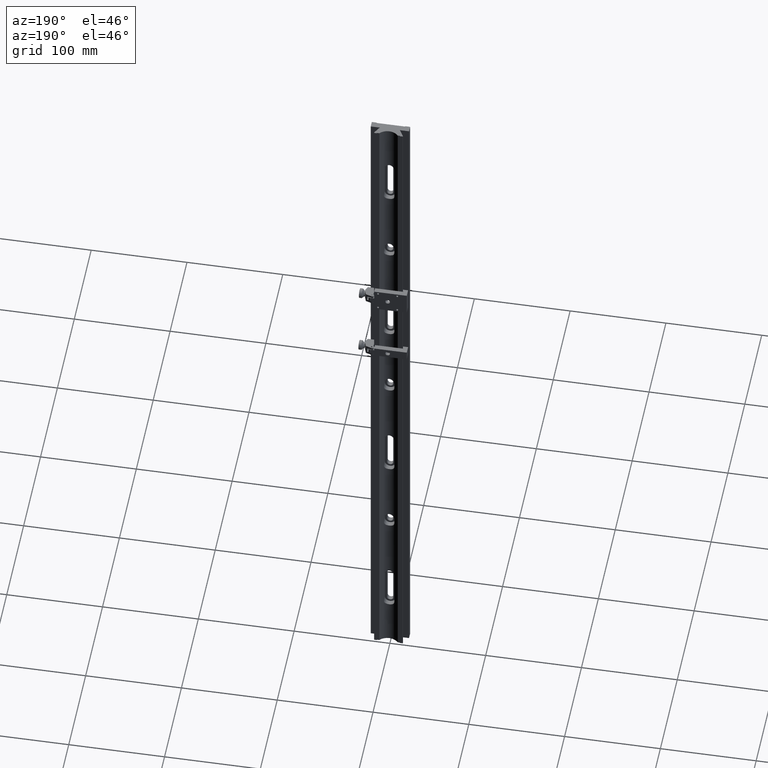
[diagram: clean part render]
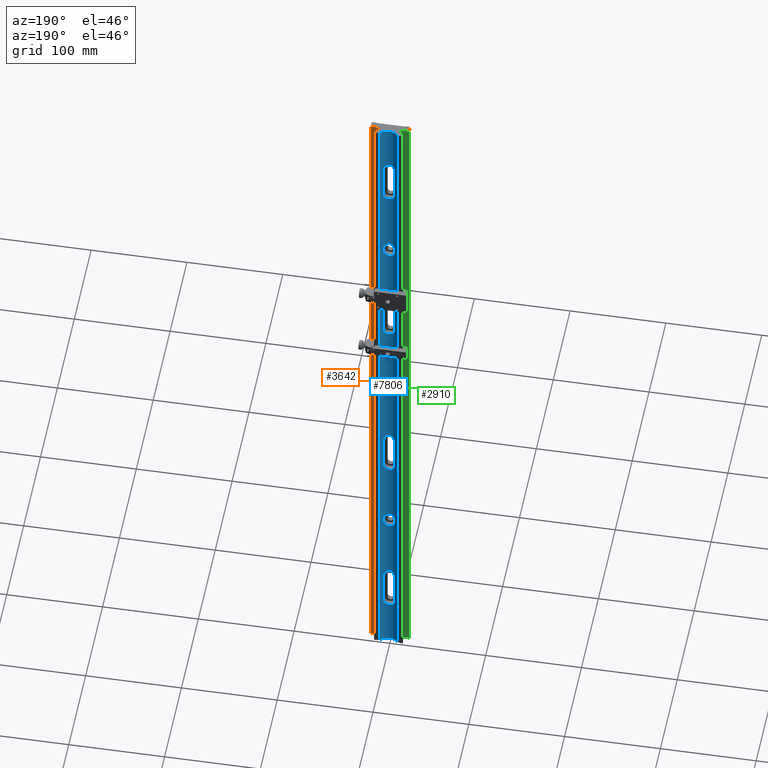
[diagram: same view with three faces highlighted in distinct colors, each labeled with its STEP entity id]
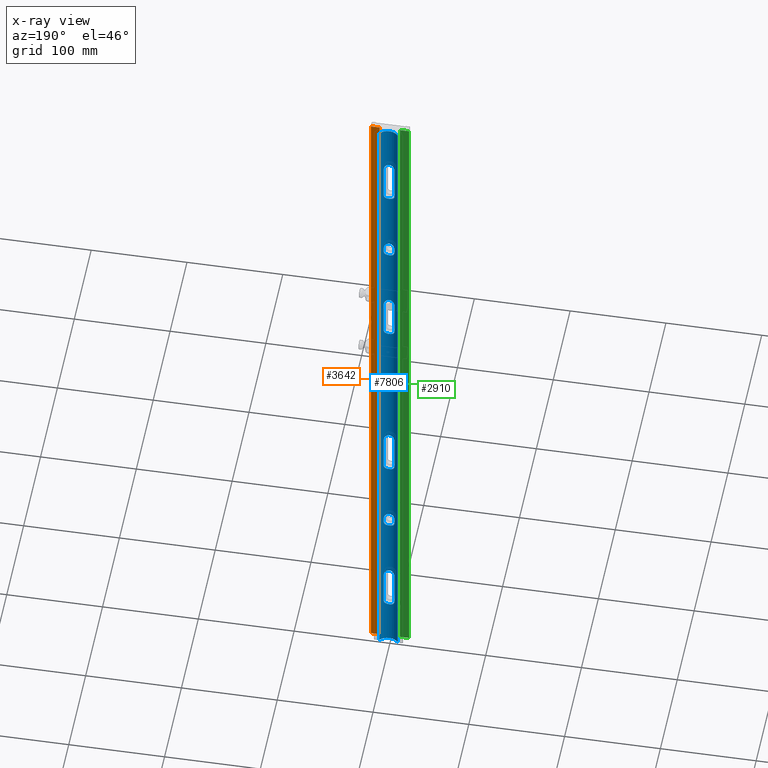
[diagram: x-ray of the same camera — body ghosted, the three highlighted faces saturated]
A machine part, auxiliary view with three faces highlighted in distinct colors.
The next image is the same camera in x-ray (body ghosted, the three faces saturated) — at least one of them is partly hidden behind the body in this view.
Their STEP definitions:

[orange] entity #3642 — the highlighted planar face has unit normal (0, -1, 0).
#83 = DIRECTION ( 'NONE',  ( 2.449293598294705921E-16, -0.000000000000000000, 1.000000000000000000 ) ) ;
#127 = VERTEX_POINT ( 'NONE', #5987 ) ;
#130 = LINE ( 'NONE', #1961, #2920 ) ;
#648 = DIRECTION ( 'NONE',  ( -1.000000000000000000, 0.000000000000000000, 2.449293598294706414E-16 ) ) ;
#782 = DIRECTION ( 'NONE',  ( -1.000000000000000000, 0.000000000000000000, 2.449293598294706414E-16 ) ) ;
#1166 = DIRECTION ( 'NONE',  ( 1.000000000000000000, 0.000000000000000000, -2.449293598294705921E-16 ) ) ;
#1229 = ORIENTED_EDGE ( 'NONE', *, *, #1980, .T. ) ;
#1683 = EDGE_CURVE ( 'NONE', #127, #2333, #4557, .T. ) ;
#1747 = AXIS2_PLACEMENT_3D ( 'NONE', #1921, #83, #1166 ) ;
#1921 = CARTESIAN_POINT ( 'NONE',  ( 20.00000000000000000, 375.0000000000000000, -4.898587196589413026E-15 ) ) ;
#1961 = CARTESIAN_POINT ( 'NONE',  ( 20.00000000000000000, 375.0000000000000000, -4.898587196589413026E-15 ) ) ;
#1980 = EDGE_CURVE ( 'NONE', #5323, #127, #5337, .T. ) ;
#2322 = CARTESIAN_POINT ( 'NONE',  ( 20.00000000000000000, 375.0000000000000000, -4.898587196589413026E-15 ) ) ;
#2333 = VERTEX_POINT ( 'NONE', #4110 ) ;
#2920 = VECTOR ( 'NONE', #648, 1000.000000000000000 ) ;
#3049 = PLANE ( 'NONE',  #1747 ) ;
#3202 = LINE ( 'NONE', #3802, #4341 ) ;
#3568 = ORIENTED_EDGE ( 'NONE', *, *, #5027, .F. ) ;
#3642 = ADVANCED_FACE ( 'NONE', ( #7479 ), #3049, .F. ) ;
#3657 = DIRECTION ( 'NONE',  ( -0.000000000000000000, -1.000000000000000000, -0.000000000000000000 ) ) ;
#3766 = VECTOR ( 'NONE', #3657, 1000.000000000000000 ) ;
#3802 = CARTESIAN_POINT ( 'NONE',  ( 10.59252271188812777, 375.0000000000000000, -2.594419806801887381E-15 ) ) ;
#4110 = CARTESIAN_POINT ( 'NONE',  ( 10.59252271188812777, -375.0000000000000000, -2.594419806801887381E-15 ) ) ;
#4341 = VECTOR ( 'NONE', #6370, 1000.000000000000000 ) ;
#4350 = EDGE_CURVE ( 'NONE', #6240, #2333, #3202, .T. ) ;
#4360 = CARTESIAN_POINT ( 'NONE',  ( 20.00000000000000000, 375.0000000000000000, -4.898587196589413026E-15 ) ) ;
#4557 = LINE ( 'NONE', #7087, #6752 ) ;
#4599 = EDGE_LOOP ( 'NONE', ( #4816, #7213, #3568, #1229 ) ) ;
#4816 = ORIENTED_EDGE ( 'NONE', *, *, #1683, .T. ) ;
#5027 = EDGE_CURVE ( 'NONE', #5323, #6240, #130, .T. ) ;
#5323 = VERTEX_POINT ( 'NONE', #2322 ) ;
#5337 = LINE ( 'NONE', #4360, #3766 ) ;
#5522 = CARTESIAN_POINT ( 'NONE',  ( 10.59252271188812777, 375.0000000000000000, -2.594419806801887381E-15 ) ) ;
#5987 = CARTESIAN_POINT ( 'NONE',  ( 20.00000000000000000, -375.0000000000000000, -4.898587196589413026E-15 ) ) ;
#6240 = VERTEX_POINT ( 'NONE', #5522 ) ;
#6370 = DIRECTION ( 'NONE',  ( -0.000000000000000000, -1.000000000000000000, -0.000000000000000000 ) ) ;
#6752 = VECTOR ( 'NONE', #782, 1000.000000000000000 ) ;
#7087 = CARTESIAN_POINT ( 'NONE',  ( 20.00000000000000000, -375.0000000000000000, -4.898587196589413026E-15 ) ) ;
#7213 = ORIENTED_EDGE ( 'NONE', *, *, #4350, .F. ) ;
#7479 = FACE_OUTER_BOUND ( 'NONE', #4599, .T. ) ;

[blue] entity #7806 — the highlighted cylindrical surface (edge-blend (fillet) strip) has radius 12.5 mm, axis along (-0, 0, -1).
#1 = DIRECTION ( 'NONE',  ( -0.000000000000000000, -1.000000000000000000, -0.000000000000000000 ) ) ;
#3 = CARTESIAN_POINT ( 'NONE',  ( -4.927301002126866614, 5.450254798026421987, -4.511737245493970150 ) ) ;
#8 = CARTESIAN_POINT ( 'NONE',  ( 0.3716744979042047592, -75.00049753860504609, -3.500218916825644122 ) ) ;
#15 = CARTESIAN_POINT ( 'NONE',  ( -4.134927261176865265, 193.3690178584609498, -4.203101428351043722 ) ) ;
#21 = CARTESIAN_POINT ( 'NONE',  ( 2.769513885777397544, 124.2653506018369285, -3.806797052175197038 ) ) ;
#23 = EDGE_CURVE ( 'NONE', #5303, #6064, #7561, .T. ) ;
#28 = CARTESIAN_POINT ( 'NONE',  ( 1.791243918881797681, 324.7033078723133031, -3.627770058525934260 ) ) ;
#29 = VERTEX_POINT ( 'NONE', #779 ) ;
#30 = CARTESIAN_POINT ( 'NONE',  ( 5.213099869976743683, -195.2103918892062495, -4.637932341751268339 ) ) ;
#43 = CARTESIAN_POINT ( 'NONE',  ( -4.664130054569972650, 5.920240057219704255, -4.402269544413257130 ) ) ;
#60 = CARTESIAN_POINT ( 'NONE',  ( 4.134927261176863489, 123.1309821415389649, -4.203101428351039281 ) ) ;
#72 = CARTESIAN_POINT ( 'NONE',  ( 5.499999999999998224, -3.368535934802752596, -4.775027839678175567 ) ) ;
#80 = CARTESIAN_POINT ( 'NONE',  ( 4.767077514528521576, 5.766365201874045887, -4.442719698820007501 ) ) ;
#96 = CARTESIAN_POINT ( 'NONE',  ( 4.927301002126864837, 194.5497452019735931, -4.511737245493967485 ) ) ;
#111 = CARTESIAN_POINT ( 'NONE',  ( -5.463268972524249811, 320.2328851296966263, -4.756815190711166430 ) ) ;
#113 = CARTESIAN_POINT ( 'NONE',  ( -4.140132957479324638, -193.3619932071737537, -4.202588055097329800 ) ) ;
#124 = VERTEX_POINT ( 'NONE', #3380 ) ;
#134 = CARTESIAN_POINT ( 'NONE',  ( 1.791243918881805675, 208.2033078723133599, -3.627770058525935593 ) ) ;
#143 = DIRECTION ( 'NONE',  ( -0.000000000000000000, -1.000000000000000000, -0.000000000000000000 ) ) ;
#160 = CARTESIAN_POINT ( 'NONE',  ( -0.3716744979042047037, -124.9995024613949965, -3.500218916825644122 ) ) ;
#168 = CARTESIAN_POINT ( 'NONE',  ( -0.3716744979042020391, 191.5004975386050887, -3.500218916825645010 ) ) ;
#177 = DIRECTION ( 'NONE',  ( -0.000000000000000000, -1.000000000000000000, -0.000000000000000000 ) ) ;
#189 = CARTESIAN_POINT ( 'NONE',  ( 0.7318247305610898756, -275.0368120784781354, -3.516321624483725650 ) ) ;
#196 = CARTESIAN_POINT ( 'NONE',  ( -0.7318247305610954268, -124.9631879215218930, -3.516321624483725206 ) ) ;
#199 = CARTESIAN_POINT ( 'NONE',  ( -4.140132957479327303, -76.86199320717369687, -4.202588055097333353 ) ) ;
#202 = CARTESIAN_POINT ( 'NONE',  ( -1.783197991779772895, 208.2155400363112392, -3.623181025438773073 ) ) ;
#205 = CARTESIAN_POINT ( 'NONE',  ( -4.935953207741832216, 278.0473538013904999, -4.514820086043209280 ) ) ;
#239 = CARTESIAN_POINT ( 'NONE',  ( 5.320886567516189380, -279.0616540270160613, -4.688748875783189440 ) ) ;
#245 = CARTESIAN_POINT ( 'NONE',  ( 5.499999999999996447, -119.8685359348027504, -4.775027839678175567 ) ) ;
#249 = VERTEX_POINT ( 'NONE', #2097 ) ;
#253 = CARTESIAN_POINT ( 'NONE',  ( -5.213099869976739242, 278.7103918892061643, -4.637932341751265675 ) ) ;
#277 = CARTESIAN_POINT ( 'NONE',  ( 4.935953207741828663, -278.0473538013904999, -4.514820086043206615 ) ) ;
#281 = CARTESIAN_POINT ( 'NONE',  ( 2.767522286145573052, -124.2663226463482431, -3.806394110068379799 ) ) ;
#293 = EDGE_CURVE ( 'NONE', #6707, #6554, #3666, .T. ) ;
#300 = CARTESIAN_POINT ( 'NONE',  ( -5.499999999999893419, 375.0000000000000000, -4.775027839678121389 ) ) ;
#303 = EDGE_CURVE ( 'NONE', #3543, #3322, #6414, .T. ) ;
#309 = DIRECTION ( 'NONE',  ( -0.000000000000000000, -1.000000000000000000, -0.000000000000000000 ) ) ;
#316 = CARTESIAN_POINT ( 'NONE',  ( 4.664130054569964656, -205.9202400572197291, -4.402269544413250024 ) ) ;
#328 = CARTESIAN_POINT ( 'NONE',  ( 5.004172744658498928, 278.2108664494283516, -4.545134261420411548 ) ) ;
#331 = ORIENTED_EDGE ( 'NONE', *, *, #7406, .T. ) ;
#355 = VERTEX_POINT ( 'NONE', #2486 ) ;
#364 = CARTESIAN_POINT ( 'NONE',  ( 2.767522286145575716, -7.766322646348289283, -3.806394110068380243 ) ) ;
#373 = CARTESIAN_POINT ( 'NONE',  ( -5.463268972524254252, 203.7328851296965126, -4.756815190711169095 ) ) ;
#385 = CARTESIAN_POINT ( 'NONE',  ( 5.500000000000000000, 203.0000000000000000, -4.775027839678192443 ) ) ;
#442 = CARTESIAN_POINT ( 'NONE',  ( -9.604686356149272797, 375.0000000000000000, -7.999999999999998224 ) ) ;
#463 = LINE ( 'NONE', #7804, #2785 ) ;
#480 = VECTOR ( 'NONE', #1912, 1000.000000000000000 ) ;
#500 = CARTESIAN_POINT ( 'NONE',  ( 4.757545737347813386, -322.2654660182066664, -4.440405074606871061 ) ) ;
#507 = CARTESIAN_POINT ( 'NONE',  ( 5.211065515426129835, 78.70492193014369775, -4.637008669236490910 ) ) ;
#525 = CARTESIAN_POINT ( 'NONE',  ( 1.266012518167691558, 8.355390716780021876, -3.562992296828747740 ) ) ;
#532 = CARTESIAN_POINT ( 'NONE',  ( 4.468409719719223183, -77.28826126659807016, -4.325465594975088202 ) ) ;
#545 = CARTESIAN_POINT ( 'NONE',  ( -4.757545737347818715, 322.2654660182066664, -4.440405074606871949 ) ) ;
#561 = ORIENTED_EDGE ( 'NONE', *, *, #7599, .F. ) ;
#562 = CARTESIAN_POINT ( 'NONE',  ( 2.455686713790327325, 7.934343998055410907, -3.739010744038294032 ) ) ;
#567 = CARTESIAN_POINT ( 'NONE',  ( 5.499999999999992006, -319.8685359348027077, -4.775027839678173791 ) ) ;
#594 = CARTESIAN_POINT ( 'NONE',  ( -1.791243918881806119, -208.2033078723133315, -3.627770058525936037 ) ) ;
#604 = CARTESIAN_POINT ( 'NONE',  ( 4.360951971730209209, 6.356151466734035083, -4.284773272989579773 ) ) ;
#614 = CARTESIAN_POINT ( 'NONE',  ( 0.7318247305610953157, -75.03681207847813539, -3.516321624483725206 ) ) ;
#622 = CARTESIAN_POINT ( 'NONE',  ( -1.960439013360200988, 191.8581408171018836, -3.653553443696078595 ) ) ;
#635 = CARTESIAN_POINT ( 'NONE',  ( -0.7235754915566942058, -191.5447274495481338, -3.519625967096237318 ) ) ;
#650 = CARTESIAN_POINT ( 'NONE',  ( 4.664130054569961992, -322.4202400572197575, -4.402269544413250024 ) ) ;
#656 = CARTESIAN_POINT ( 'NONE',  ( 4.664130054569964656, 194.0797599427802425, -4.402269544413250024 ) ) ;
#663 = CARTESIAN_POINT ( 'NONE',  ( 5.320886567516186716, 120.9383459729838535, -4.688748875783187664 ) ) ;
#668 = CARTESIAN_POINT ( 'NONE',  ( -5.499999999999996447, 319.5000000000000000, -4.775027839678172015 ) ) ;
#670 = CARTESIAN_POINT ( 'NONE',  ( 0.7318247305610878772, -191.5368120784781070, -3.516321624483724761 ) ) ;
#676 = ORIENTED_EDGE ( 'NONE', *, *, #4093, .T. ) ;
#677 = CARTESIAN_POINT ( 'NONE',  ( -5.499999999999999112, -203.3683992632186914, -4.775027839678177344 ) ) ;
#681 = CARTESIAN_POINT ( 'NONE',  ( -1.436019803944291295, 8.321557481281221413, -3.577646812477409899 ) ) ;
#702 = CARTESIAN_POINT ( 'NONE',  ( -0.1746818680405322621, 125.0002412273279759, -3.499893860054751560 ) ) ;
#709 = CARTESIAN_POINT ( 'NONE',  ( 4.015897234029109697, -193.2378380536803775, -4.161930955679303601 ) ) ;
#716 = CARTESIAN_POINT ( 'NONE',  ( 5.500000000000048850, 375.0000000000000000, -4.775027839678199548 ) ) ;
#731 = LINE ( 'NONE', #1930, #4928 ) ;
#735 = CARTESIAN_POINT ( 'NONE',  ( -4.468409719719204531, 193.7882612665979423, -4.325465594975079320 ) ) ;
#742 = ORIENTED_EDGE ( 'NONE', *, *, #3877, .F. ) ;
#766 = ORIENTED_EDGE ( 'NONE', *, *, #7862, .T. ) ;
#768 = CARTESIAN_POINT ( 'NONE',  ( -1.266012518167695777, -124.8553907167800077, -3.562992296828745964 ) ) ;
#772 = CARTESIAN_POINT ( 'NONE',  ( -5.499999999999995559, -80.13146406519727805, -4.775027839678173791 ) ) ;
#773 = CARTESIAN_POINT ( 'NONE',  ( 4.134927261176866153, 206.6309821415388797, -4.203101428351043722 ) ) ;
#779 = CARTESIAN_POINT ( 'NONE',  ( 5.499999999999998224, -203.0000000000000000, -4.775027839678175567 ) ) ;
#796 = CARTESIAN_POINT ( 'NONE',  ( 2.769513885777401985, -275.7346493981631284, -3.806797052175198814 ) ) ;
#805 = CARTESIAN_POINT ( 'NONE',  ( -5.500000000000001776, -119.5000000000000000, -4.775027839678175567 ) ) ;
#809 = CARTESIAN_POINT ( 'NONE',  ( -1.436019803944288631, 208.3215574812812463, -3.577646812477408123 ) ) ;
#832 = CARTESIAN_POINT ( 'NONE',  ( 5.211065515426124506, -204.7950780698564017, -4.637008669236491798 ) ) ;
#838 = CARTESIAN_POINT ( 'NONE',  ( -5.463371493397496614, -120.2295511822378558, -4.756877311680623777 ) ) ;
#845 = CARTESIAN_POINT ( 'NONE',  ( -3.359488323669840959, 207.3693076541405276, -3.956037097100739697 ) ) ;
#847 = CARTESIAN_POINT ( 'NONE',  ( -1.266012518167694667, 275.1446092832199497, -3.562992296828746408 ) ) ;
#855 = DIRECTION ( 'NONE',  ( 0.000000000000000000, 0.000000000000000000, 1.000000000000000000 ) ) ;
#887 = CARTESIAN_POINT ( 'NONE',  ( -4.935953207741847315, -121.9526461986094432, -4.514820086043216385 ) ) ;
#893 = CARTESIAN_POINT ( 'NONE',  ( 5.317647263843137573, 279.0484297961110656, -4.687213424654781413 ) ) ;
#917 = LINE ( 'NONE', #4462, #3036 ) ;
#919 = CARTESIAN_POINT ( 'NONE',  ( 5.004172744658491823, -205.2891335505716199, -4.545134261420405331 ) ) ;
#924 = CARTESIAN_POINT ( 'NONE',  ( 1.436019803944290185, -124.8215574812812321, -3.577646812477413008 ) ) ;
#930 = CARTESIAN_POINT ( 'NONE',  ( 5.500000000000000000, 203.0000000000000000, -4.775027839678192443 ) ) ;
#933 = CARTESIAN_POINT ( 'NONE',  ( 0.7235754915566925405, 275.0447274495481906, -3.519625967096237762 ) ) ;
#947 = CARTESIAN_POINT ( 'NONE',  ( 4.664130054569974426, 77.57975994278031351, -4.402269544413257130 ) ) ;
#956 = CARTESIAN_POINT ( 'NONE',  ( 4.134927261176858160, -276.8690178584608930, -4.203101428351036617 ) ) ;
#982 = CARTESIAN_POINT ( 'NONE',  ( 0.1746818680405327895, 74.99975877267203828, -3.499893860054749339 ) ) ;
#991 = CARTESIAN_POINT ( 'NONE',  ( 5.500000000000086153, 375.0000000000000000, -4.775027839678217312 ) ) ;
#1004 = CARTESIAN_POINT ( 'NONE',  ( -4.767077514528522464, -5.766365201874046775, -4.442719698820006613 ) ) ;
#1036 = CARTESIAN_POINT ( 'NONE',  ( -1.783197991779752245, -275.2844599636887324, -3.623181025438773073 ) ) ;
#1042 = EDGE_CURVE ( 'NONE', #1432, #6660, #6464, .T. ) ;
#1094 = CARTESIAN_POINT ( 'NONE',  ( 5.500000000000002665, -80.50000000000001421, -4.775027839678175567 ) ) ;
#1135 = ORIENTED_EDGE ( 'NONE', *, *, #7617, .T. ) ;
#1137 = CARTESIAN_POINT ( 'NONE',  ( 2.452909808896948096, -324.4360800659704864, -3.738324891094067848 ) ) ;
#1157 = EDGE_CURVE ( 'NONE', #2868, #6605, #2060, .T. ) ;
#1158 = CARTESIAN_POINT ( 'NONE',  ( 4.664130054569975314, -5.920240057219700702, -4.402269544413255353 ) ) ;
#1164 = CARTESIAN_POINT ( 'NONE',  ( 3.640810629803842513, 7.137592340526056844, -4.039074654214519278 ) ) ;
#1169 = CARTESIAN_POINT ( 'NONE',  ( 2.769513885777399764, -75.73464939816309993, -3.806797052175198370 ) ) ;
#1181 = CARTESIAN_POINT ( 'NONE',  ( 4.360951971730211874, 122.8561514667340617, -4.284773272989580661 ) ) ;
#1188 = CARTESIAN_POINT ( 'NONE',  ( 1.960439013360216087, 324.6418591828982017, -3.653553443696080816 ) ) ;
#1190 = CARTESIAN_POINT ( 'NONE',  ( 4.767077514528505588, -194.2336347981259053, -4.442719698820002172 ) ) ;
#1200 = CARTESIAN_POINT ( 'NONE',  ( -2.769513885777388662, -207.7653506018370138, -3.806797052175194374 ) ) ;
#1203 = CARTESIAN_POINT ( 'NONE',  ( -3.638581638029507292, 7.139627760276445301, -4.038379994050424138 ) ) ;
#1206 = CARTESIAN_POINT ( 'NONE',  ( 5.500000000000001776, -80.13160073678132278, -4.775027839678177344 ) ) ;
#1211 = CARTESIAN_POINT ( 'NONE',  ( 0.7235754915566929846, 191.5447274495481906, -3.519625967096239538 ) ) ;
#1214 = DIRECTION ( 'NONE',  ( 0.000000000000000000, 0.000000000000000000, -1.000000000000000000 ) ) ;
#1217 = CARTESIAN_POINT ( 'NONE',  ( 1.791243918881802122, 124.7033078723133315, -3.627770058525932928 ) ) ;
#1221 = CARTESIAN_POINT ( 'NONE',  ( 5.213099869976735690, 321.2896081107938926, -4.637932341751261234 ) ) ;
#1223 = CARTESIAN_POINT ( 'NONE',  ( -4.927301002126866614, -194.5497452019736500, -4.511737245493968373 ) ) ;
#1245 = CARTESIAN_POINT ( 'NONE',  ( 4.468409719719223183, 6.211738733401981349, -4.325465594975085537 ) ) ;
#1253 = CARTESIAN_POINT ( 'NONE',  ( -1.444167463114250483, -324.8101175061848949, -3.582471709711286145 ) ) ;
#1260 = CARTESIAN_POINT ( 'NONE',  ( 4.365141366191267025, 193.6350058716099909, -4.284993196813128513 ) ) ;
#1262 = ORIENTED_EDGE ( 'NONE', *, *, #2321, .F. ) ;
#1263 = DIRECTION ( 'NONE',  ( -0.000000000000000000, -1.000000000000000000, -0.000000000000000000 ) ) ;
#1268 = LINE ( 'NONE', #6204, #2271 ) ;
#1273 = CARTESIAN_POINT ( 'NONE',  ( 5.463371493397498391, -196.2704488177621727, -4.756877311680623777 ) ) ;
#1274 = VERTEX_POINT ( 'NONE', #6355 ) ;
#1280 = CARTESIAN_POINT ( 'NONE',  ( 5.500000000000105693, 375.0000000000000000, -4.775027839678227082 ) ) ;
#1304 = CARTESIAN_POINT ( 'NONE',  ( -1.436019803944296847, 324.8215574812812179, -3.577646812477412563 ) ) ;
#1306 = DIRECTION ( 'NONE',  ( -0.000000000000000000, -1.000000000000000000, -0.000000000000000000 ) ) ;
#1322 = CARTESIAN_POINT ( 'NONE',  ( -3.638581638029504628, -76.36037223972360266, -4.038379994050424138 ) ) ;
#1326 = CARTESIAN_POINT ( 'NONE',  ( -5.213099869976742795, 195.2103918892061927, -4.637932341751268339 ) ) ;
#1329 = CARTESIAN_POINT ( 'NONE',  ( 5.500000000000000888, 319.5000000000000000, -4.775027839678175567 ) ) ;
#1348 = CARTESIAN_POINT ( 'NONE',  ( -5.320886567516190269, -204.4383459729837966, -4.688748875783187664 ) ) ;
#1364 = CARTESIAN_POINT ( 'NONE',  ( -0.7235754915566942058, 208.4552725504519231, -3.519625967096237318 ) ) ;
#1365 = CARTESIAN_POINT ( 'NONE',  ( 0.9034421561682093316, 275.0716877395977349, -3.531417676067726497 ) ) ;
#1368 = CARTESIAN_POINT ( 'NONE',  ( -4.767077514528506477, 194.2336347981259053, -4.442719698820002172 ) ) ;
#1382 = ORIENTED_EDGE ( 'NONE', *, *, #7412, .F. ) ;
#1384 = CARTESIAN_POINT ( 'NONE',  ( -1.791243918881800123, 75.29669212768669695, -3.627770058525933372 ) ) ;
#1393 = CARTESIAN_POINT ( 'NONE',  ( 4.360951971730207433, -277.1438485332660093, -4.284773272989580661 ) ) ;
#1400 = CARTESIAN_POINT ( 'NONE',  ( 1.783197991779762903, -124.7155400363112392, -3.623181025438776182 ) ) ;
#1406 = CARTESIAN_POINT ( 'NONE',  ( 0.3716744979042012620, 208.4995024613950250, -3.500218916825644566 ) ) ;
#1432 = VERTEX_POINT ( 'NONE', #7156 ) ;
#1433 = CARTESIAN_POINT ( 'NONE',  ( 3.638581638029496634, -207.1396277602765679, -4.038379994050417920 ) ) ;
#1436 = VECTOR ( 'NONE', #309, 1000.000000000000000 ) ;
#1440 = DIRECTION ( 'NONE',  ( -0.000000000000000000, -1.000000000000000000, -0.000000000000000000 ) ) ;
#1471 = CARTESIAN_POINT ( 'NONE',  ( 0.1746818680405358704, -208.5002412273279901, -3.499893860054749783 ) ) ;
#1476 = CARTESIAN_POINT ( 'NONE',  ( -3.640810629803848730, -123.6375923405260693, -4.039074654214522830 ) ) ;
#1479 = EDGE_CURVE ( 'NONE', #6605, #2285, #3214, .T. ) ;
#1485 = CARTESIAN_POINT ( 'NONE',  ( -0.3716744979042072572, 275.0004975386050319, -3.500218916825645010 ) ) ;
#1506 = ORIENTED_EDGE ( 'NONE', *, *, #4632, .T. ) ;
#1511 = CIRCLE ( 'NONE', #7067, 12.50000000000000000 ) ;
#1518 = CARTESIAN_POINT ( 'NONE',  ( 4.767077514528520688, -277.7336347981259905, -4.442719698820007501 ) ) ;
#1523 = CARTESIAN_POINT ( 'NONE',  ( 0.1746818680405322344, -125.0002412273279759, -3.499893860054750228 ) ) ;
#1531 = CARTESIAN_POINT ( 'NONE',  ( 3.365233826132077777, 207.3650858888913433, -3.957591329563103333 ) ) ;
#1533 = CARTESIAN_POINT ( 'NONE',  ( -4.468409719719227624, 277.2882612665979991, -4.325465594975087313 ) ) ;
#1538 = VERTEX_POINT ( 'NONE', #1962 ) ;
#1549 = CARTESIAN_POINT ( 'NONE',  ( -4.015897234029111473, 76.73783805368042010, -4.161930955679307154 ) ) ;
#1558 = CARTESIAN_POINT ( 'NONE',  ( -5.500000000000000000, -2.999999999999999112, -4.775027839678175567 ) ) ;
#1582 = CARTESIAN_POINT ( 'NONE',  ( -0.7318247305610920961, 75.03681207847812118, -3.516321624483725206 ) ) ;
#1584 = EDGE_LOOP ( 'NONE', ( #561, #4976, #3950, #4343 ) ) ;
#1596 = CARTESIAN_POINT ( 'NONE',  ( -4.757545737347818715, -277.7345339817934473, -4.440405074606871949 ) ) ;
#1605 = CARTESIAN_POINT ( 'NONE',  ( -4.927301002126866614, 205.4502547980264353, -4.511737245493968373 ) ) ;
#1665 = CARTESIAN_POINT ( 'NONE',  ( 2.452909808896960975, 75.56391993402969831, -3.738324891094070068 ) ) ;
#1684 = CARTESIAN_POINT ( 'NONE',  ( -4.365141366191266137, 206.3649941283901228, -4.284993196813127625 ) ) ;
#1691 = CARTESIAN_POINT ( 'NONE',  ( 3.359488323669817422, -323.8693076541405276, -3.956037097100733479 ) ) ;
#1708 = CARTESIAN_POINT ( 'NONE',  ( -5.499999999999997335, -280.1314640651972354, -4.775027839678172015 ) ) ;
#1712 = CARTESIAN_POINT ( 'NONE',  ( -5.320886567516185828, -4.438345972983841037, -4.688748875783186776 ) ) ;
#1725 = CARTESIAN_POINT ( 'NONE',  ( 3.640810629803847842, -76.36240765947397335, -4.039074654214521942 ) ) ;
#1733 = LINE ( 'NONE', #3475, #5245 ) ;
#1737 = CARTESIAN_POINT ( 'NONE',  ( -4.140132957479330855, 123.1380067928263173, -4.202588055097335129 ) ) ;
#1760 = CARTESIAN_POINT ( 'NONE',  ( 4.134927261176862601, 6.630982141538984465, -4.203101428351038393 ) ) ;
#1767 = CARTESIAN_POINT ( 'NONE',  ( 4.360951971730210985, -77.14384853326598090, -4.284773272989579773 ) ) ;
#1770 = EDGE_CURVE ( 'NONE', #7829, #249, #3916, .T. ) ;
#1782 = CARTESIAN_POINT ( 'NONE',  ( -4.664130054569976203, 122.4202400572197291, -4.402269544413258906 ) ) ;
#1788 = CARTESIAN_POINT ( 'NONE',  ( 5.500000000000000888, 319.8683992632187483, -4.775027839678174679 ) ) ;
#1790 = CARTESIAN_POINT ( 'NONE',  ( 5.500000000000000000, -197.0000000000000000, -4.775027839678175567 ) ) ;
#1794 = LINE ( 'NONE', #7386, #480 ) ;
#1796 = CARTESIAN_POINT ( 'NONE',  ( -3.640810629803843845, -207.1375923405260551, -4.039074654214518389 ) ) ;
#1805 = CARTESIAN_POINT ( 'NONE',  ( -4.935953207741830440, -321.9526461986093864, -4.514820086043210168 ) ) ;
#1815 = FACE_OUTER_BOUND ( 'NONE', #7849, .T. ) ;
#1823 = CARTESIAN_POINT ( 'NONE',  ( -4.365141366191267025, 322.8649941283901512, -4.284993196813128513 ) ) ;
#1826 = CARTESIAN_POINT ( 'NONE',  ( 2.769513885777387330, -192.2346493981630715, -3.806797052175194374 ) ) ;
#1831 = VECTOR ( 'NONE', #177, 1000.000000000000000 ) ;
#1833 = VERTEX_POINT ( 'NONE', #7247 ) ;
#1839 = CARTESIAN_POINT ( 'NONE',  ( -2.455686713790346420, -324.4343439980554535, -3.739010744038299805 ) ) ;
#1844 = CARTESIAN_POINT ( 'NONE',  ( 4.757545737347824044, 194.2345339817934189, -4.440405074606874614 ) ) ;
#1850 = CARTESIAN_POINT ( 'NONE',  ( -5.004172744658499816, 121.7891335505715915, -4.545134261420408883 ) ) ;
#1856 = CARTESIAN_POINT ( 'NONE',  ( 1.444167463114244265, 324.8101175061847812, -3.582471709711286145 ) ) ;
#1858 = CARTESIAN_POINT ( 'NONE',  ( 3.365233826132077777, -192.6349141111087135, -3.957591329563103333 ) ) ;
#1880 = CARTESIAN_POINT ( 'NONE',  ( -5.499999999999997335, 3.368535934802753040, -4.775027839678172903 ) ) ;
#1889 = CARTESIAN_POINT ( 'NONE',  ( -4.664130054569973538, -77.57975994278032772, -4.402269544413257130 ) ) ;
#1894 = CARTESIAN_POINT ( 'NONE',  ( -2.769513885777388662, 192.2346493981630999, -3.806797052175194374 ) ) ;
#1904 = CARTESIAN_POINT ( 'NONE',  ( 4.015897234029107921, 323.2621619463196225, -4.161930955679305377 ) ) ;
#1906 = LINE ( 'NONE', #7931, #7063 ) ;
#1912 = DIRECTION ( 'NONE',  ( -0.000000000000000000, -1.000000000000000000, -0.000000000000000000 ) ) ;
#1930 = CARTESIAN_POINT ( 'NONE',  ( 5.500000000000010658, 375.0000000000000000, -4.775027839678180896 ) ) ;
#1935 = ORIENTED_EDGE ( 'NONE', *, *, #5212, .T. ) ;
#1945 = EDGE_LOOP ( 'NONE', ( #742, #5631, #7432, #676 ) ) ;
#1946 = CARTESIAN_POINT ( 'NONE',  ( -0.1746818680405374247, -191.4997587726720099, -3.499893860054750228 ) ) ;
#1962 = CARTESIAN_POINT ( 'NONE',  ( -5.499999999999996447, 319.5000000000000000, -4.775027839678172015 ) ) ;
#1969 = CARTESIAN_POINT ( 'NONE',  ( -1.444167463114251371, 191.6898824938151620, -3.582471709711287922 ) ) ;
#1983 = CARTESIAN_POINT ( 'NONE',  ( -2.455686713790331765, 75.56565600194463173, -3.739010744038295808 ) ) ;
#1992 = AXIS2_PLACEMENT_3D ( 'NONE', #2025, #6967, #3876 ) ;
#2008 = EDGE_CURVE ( 'NONE', #2430, #2329, #731, .T. ) ;
#2016 = DIRECTION ( 'NONE',  ( -0.000000000000000000, -1.000000000000000000, -0.000000000000000000 ) ) ;
#2025 = CARTESIAN_POINT ( 'NONE',  ( -2.407148620655123076E-16, 375.0000000000000000, -16.00000000000000000 ) ) ;
#2039 = ORIENTED_EDGE ( 'NONE', *, *, #23, .F. ) ;
#2050 = CARTESIAN_POINT ( 'NONE',  ( 1.266012518167691336, 208.3553907167800787, -3.562992296828746408 ) ) ;
#2056 = CARTESIAN_POINT ( 'NONE',  ( 9.604686356149276349, 375.0000000000000000, -8.000000000000001776 ) ) ;
#2060 = B_SPLINE_CURVE_WITH_KNOTS ( 'NONE', 3,
 ( #6234, #2462, #5552, #663, #5590, #3754, #6763, #6728, #1181, #60, #4892, #3106, #7893, #21, #3630, #2497, #1217, #4369, #2383, #4966, #7971, #702, #2429, #3668, #6161, #2347, #4811, #7373, #7294, #6118, #4324, #1737, #7408, #1782, #4209, #2984, #1850, #5513, #6203, #6083, #6808, #5469 ),
 .UNSPECIFIED., .F., .F.,
 ( 4, 2, 2, 2, 2, 2, 2, 2, 2, 2, 2, 2, 2, 2, 2, 2, 2, 2, 2, 2, 4 ),
 ( 0.000000000000000000, 0.001088223458269341887, 0.002176446916538683773, 0.003264670374808025660, 0.003808782103942680557, 0.004352893833077335455, 0.005441117291346616626, 0.006529340749615897797, 0.007073452478750538383, 0.007617564207885178969, 0.008705787666154452334, 0.009249899395289092052, 0.009794011124423726566, 0.01088223458269299213, 0.01197045804096226115, 0.01305868149923152671, 0.01414690495750079227, 0.01469101668663544413, 0.01523512841577009252, 0.01632335187403939278, 0.01741157533230868956 ),
 .UNSPECIFIED. ) ;
#2076 = CARTESIAN_POINT ( 'NONE',  ( -0.7235754915566974255, -275.0447274495481338, -3.519625967096239538 ) ) ;
#2092 = CARTESIAN_POINT ( 'NONE',  ( 5.211065515426128059, 278.7049219301437688, -4.637008669236493574 ) ) ;
#2097 = CARTESIAN_POINT ( 'NONE',  ( -5.500000000000000000, -203.0000000000000000, -4.775027839678175567 ) ) ;
#2107 = CARTESIAN_POINT ( 'NONE',  ( -5.213099869976748124, 78.71039188920619267, -4.637932341751268339 ) ) ;
#2117 = CARTESIAN_POINT ( 'NONE',  ( 4.365141366191267025, -206.3649941283901796, -4.284993196813128513 ) ) ;
#2133 = CARTESIAN_POINT ( 'NONE',  ( -4.134927261176860824, 276.8690178584608930, -4.203101428351040170 ) ) ;
#2164 = CARTESIAN_POINT ( 'NONE',  ( -1.266012518167692669, -208.3553907167800503, -3.562992296828745076 ) ) ;
#2167 = CARTESIAN_POINT ( 'NONE',  ( 0.3589657864649588581, -8.491329862232156245, -3.503822942303210120 ) ) ;
#2229 = CARTESIAN_POINT ( 'NONE',  ( 5.004172744658499816, 78.21086644942838007, -4.545134261420407995 ) ) ;
#2233 = EDGE_CURVE ( 'NONE', #6516, #1432, #5839, .T. ) ;
#2238 = CARTESIAN_POINT ( 'NONE',  ( -4.927301002126860396, -278.0497452019735078, -4.511737245493965709 ) ) ;
#2240 = CARTESIAN_POINT ( 'NONE',  ( -1.266012518167691336, -8.355390716780018323, -3.562992296828746852 ) ) ;
#2267 = ORIENTED_EDGE ( 'NONE', *, *, #3090, .F. ) ;
#2268 = B_SPLINE_CURVE_WITH_KNOTS ( 'NONE', 3,
 ( #6782, #6746, #3733, #7391, #6183, #5607, #80, #1245, #604, #1760, #7313, #1164, #2409, #3648, #562, #2367, #6829, #6216, #525, #4870, #4387, #5533, #2481, #2445, #3697, #681, #4826, #6102, #2528, #3087, #1203, #3611, #5568, #43, #4948, #3, #3002, #4993, #5487, #7430, #1880, #7476 ),
 .UNSPECIFIED., .F., .F.,
 ( 4, 2, 2, 2, 2, 2, 2, 2, 2, 2, 2, 2, 2, 2, 2, 2, 2, 2, 2, 2, 4 ),
 ( 8.673617379884034509E-19, 0.001088223458269292664, 0.002176446916538584461, 0.003264670374807876474, 0.003808782103942523999, 0.004352893833077172391, 0.005441117291346465705, 0.006529340749615759887, 0.007073452478750406544, 0.007617564207885053201, 0.008705787666154346516, 0.009249899395288994908, 0.009794011124423641565, 0.01088223458269293488, 0.01197045804096222993, 0.01305868149923152324, 0.01414690495750081656, 0.01469101668663546321, 0.01523512841577010814, 0.01632335187403940319, 0.01741157533230869303 ),
 .UNSPECIFIED. ) ;
#2271 = VECTOR ( 'NONE', #143, 1000.000000000000000 ) ;
#2284 = CARTESIAN_POINT ( 'NONE',  ( -3.359488323669820087, -276.1306923458595293, -3.956037097100734368 ) ) ;
#2285 = VERTEX_POINT ( 'NONE', #5940 ) ;
#2294 = CARTESIAN_POINT ( 'NONE',  ( -4.757545737347824044, 205.7654660182066095, -4.440405074606875502 ) ) ;
#2301 = CARTESIAN_POINT ( 'NONE',  ( 5.004172744658499816, -321.7891335505716484, -4.545134261420412436 ) ) ;
#2321 = EDGE_CURVE ( 'NONE', #6961, #355, #4065, .T. ) ;
#2327 = CARTESIAN_POINT ( 'NONE',  ( -5.499999999999996447, 203.3685359348027362, -4.775027839678173791 ) ) ;
#2328 = ORIENTED_EDGE ( 'NONE', *, *, #2008, .F. ) ;
#2329 = VERTEX_POINT ( 'NONE', #5247 ) ;
#2332 = CARTESIAN_POINT ( 'NONE',  ( 5.500000000000000000, 3.000000000000000000, -4.775027839678175567 ) ) ;
#2335 = CARTESIAN_POINT ( 'NONE',  ( 5.320886567516184940, -79.06165402701616074, -4.688748875783187664 ) ) ;
#2337 = VECTOR ( 'NONE', #6997, 1000.000000000000000 ) ;
#2347 = CARTESIAN_POINT ( 'NONE',  ( -1.436019803944289963, 124.8215574812812321, -3.577646812477408567 ) ) ;
#2353 = CARTESIAN_POINT ( 'NONE',  ( -4.664130054569964656, -277.5797599427803561, -4.402269544413251801 ) ) ;
#2356 = CARTESIAN_POINT ( 'NONE',  ( 4.365141366191275019, -6.364994128390050854, -4.284993196813132066 ) ) ;
#2358 = ORIENTED_EDGE ( 'NONE', *, *, #3399, .T. ) ;
#2367 = CARTESIAN_POINT ( 'NONE',  ( 1.960439013360200544, 8.141859182898075531, -3.653553443696079039 ) ) ;
#2373 = CARTESIAN_POINT ( 'NONE',  ( -4.360951971730209209, -322.8561514667341044, -4.284773272989582438 ) ) ;
#2375 = EDGE_CURVE ( 'NONE', #4800, #7506, #2268, .T. ) ;
#2380 = FACE_BOUND ( 'NONE', #4648, .T. ) ;
#2383 = CARTESIAN_POINT ( 'NONE',  ( 1.266012518167695777, 124.8553907167800077, -3.562992296828745520 ) ) ;
#2387 = CARTESIAN_POINT ( 'NONE',  ( -3.638581638029515286, 323.6396277602762552, -4.038379994050423250 ) ) ;
#2391 = CARTESIAN_POINT ( 'NONE',  ( 5.320886567516190269, -195.5616540270161750, -4.688748875783189440 ) ) ;
#2398 = CARTESIAN_POINT ( 'NONE',  ( 5.499999999999998224, -2.999999999999999112, -4.775027839678173791 ) ) ;
#2409 = CARTESIAN_POINT ( 'NONE',  ( 3.365233826132080885, 7.365085888891295340, -3.957591329563105997 ) ) ;
#2416 = CARTESIAN_POINT ( 'NONE',  ( 4.134927261176864377, -76.86901785846103508, -4.203101428351041058 ) ) ;
#2426 = FACE_BOUND ( 'NONE', #1945, .T. ) ;
#2429 = CARTESIAN_POINT ( 'NONE',  ( -0.3589657864649544727, 124.9913298622321634, -3.503822942303211008 ) ) ;
#2430 = VERTEX_POINT ( 'NONE', #1329 ) ;
#2434 = CARTESIAN_POINT ( 'NONE',  ( 4.360951971730207433, 322.8561514667341612, -4.284773272989580661 ) ) ;
#2442 = CARTESIAN_POINT ( 'NONE',  ( -1.444167463114251371, -208.3101175061848664, -3.582471709711287922 ) ) ;
#2445 = CARTESIAN_POINT ( 'NONE',  ( -0.7235754915566959822, 8.455272550451859104, -3.519625967096239538 ) ) ;
#2450 = CARTESIAN_POINT ( 'NONE',  ( -0.3589657864649542507, -75.00867013776786507, -3.503822942303210564 ) ) ;
#2454 = CARTESIAN_POINT ( 'NONE',  ( -3.640810629803843845, 192.8624076594739165, -4.039074654214518389 ) ) ;
#2456 = FACE_BOUND ( 'NONE', #4771, .T. ) ;
#2462 = CARTESIAN_POINT ( 'NONE',  ( 5.500000000000002665, 119.8683992632187199, -4.775027839678175567 ) ) ;
#2469 = CARTESIAN_POINT ( 'NONE',  ( 1.791243918881805675, -191.7966921276866969, -3.627770058525935593 ) ) ;
#2481 = CARTESIAN_POINT ( 'NONE',  ( -0.3589657864649591357, 8.491329862232156245, -3.503822942303210120 ) ) ;
#2486 = CARTESIAN_POINT ( 'NONE',  ( -9.604686356149272797, -375.0000000000000000, -7.999999999999998224 ) ) ;
#2497 = CARTESIAN_POINT ( 'NONE',  ( 1.960439013360206095, 124.6418591828980738, -3.653553443696078595 ) ) ;
#2511 = CARTESIAN_POINT ( 'NONE',  ( 5.463268972524251588, -3.732885129696531745, -4.756815190711167318 ) ) ;
#2512 = EDGE_CURVE ( 'NONE', #3543, #4688, #7622, .T. ) ;
#2518 = CARTESIAN_POINT ( 'NONE',  ( -4.134927261176865265, -206.6309821415389365, -4.203101428351043722 ) ) ;
#2528 = CARTESIAN_POINT ( 'NONE',  ( -2.767522286145573940, 7.766322646348286618, -3.806394110068379355 ) ) ;
#2535 = CARTESIAN_POINT ( 'NONE',  ( -2.767522286145573496, -75.73367735365175690, -3.806394110068378911 ) ) ;
#2540 = CARTESIAN_POINT ( 'NONE',  ( -5.499999999999994671, -80.50000000000001421, -4.775027839678172015 ) ) ;
#2552 = CARTESIAN_POINT ( 'NONE',  ( -4.757545737347824044, -194.2345339817934189, -4.440405074606875502 ) ) ;
#2575 = CARTESIAN_POINT ( 'NONE',  ( 1.444167463114250705, 208.3101175061849233, -3.582471709711287922 ) ) ;
#2578 = CARTESIAN_POINT ( 'NONE',  ( 3.638581638029496634, 192.8603722397235458, -4.038379994050417920 ) ) ;
#2588 = CARTESIAN_POINT ( 'NONE',  ( -2.769513885777396656, 75.73464939816305730, -3.806797052175194374 ) ) ;
#2596 = CARTESIAN_POINT ( 'NONE',  ( -4.360951971730212762, -206.3561514667340759, -4.284773272989583326 ) ) ;
#2605 = CARTESIAN_POINT ( 'NONE',  ( 2.452909808896958310, -124.4360800659703159, -3.738324891094070068 ) ) ;
#2613 = CARTESIAN_POINT ( 'NONE',  ( -5.500000000000003553, 280.5000000000000000, -4.775027839678175567 ) ) ;
#2635 = CARTESIAN_POINT ( 'NONE',  ( 0.3716744979042018171, -275.0004975386049750, -3.500218916825643234 ) ) ;
#2636 = ORIENTED_EDGE ( 'NONE', *, *, #6223, .T. ) ;
#2644 = CARTESIAN_POINT ( 'NONE',  ( 5.211065515426131611, -121.2950780698563449, -4.637008669236494462 ) ) ;
#2647 = CARTESIAN_POINT ( 'NONE',  ( -5.463268972524248923, -79.76711487030347314, -4.756815190711164654 ) ) ;
#2655 = CARTESIAN_POINT ( 'NONE',  ( -4.767077514528523352, 277.7336347981259905, -4.442719698820006613 ) ) ;
#2673 = CARTESIAN_POINT ( 'NONE',  ( -5.500000000000001776, 80.50000000000001421, -4.775027839678175567 ) ) ;
#2682 = CARTESIAN_POINT ( 'NONE',  ( 1.791243918881797681, -275.2966921276867538, -3.627770058525934260 ) ) ;
#2688 = CARTESIAN_POINT ( 'NONE',  ( 0.9034421561682058899, -124.9283122604022367, -3.531417676067727385 ) ) ;
#2693 = CARTESIAN_POINT ( 'NONE',  ( -2.455686713790346865, 275.5656560019445465, -3.739010744038299805 ) ) ;
#2716 = CARTESIAN_POINT ( 'NONE',  ( -1.436019803944296847, -275.1784425187188390, -3.577646812477412563 ) ) ;
#2717 = ORIENTED_EDGE ( 'NONE', *, *, #7176, .F. ) ;
#2723 = CARTESIAN_POINT ( 'NONE',  ( -2.769513885777397100, -124.2653506018369285, -3.806797052175193929 ) ) ;
#2729 = CARTESIAN_POINT ( 'NONE',  ( 4.935953207741841986, 205.4526461986095285, -4.514820086043215497 ) ) ;
#2740 = CARTESIAN_POINT ( 'NONE',  ( -5.500000000000002665, 80.13160073678135120, -4.775027839678173791 ) ) ;
#2761 = CARTESIAN_POINT ( 'NONE',  ( -9.604686356149272797, 375.0000000000000000, -7.999999999999998224 ) ) ;
#2762 = CARTESIAN_POINT ( 'NONE',  ( -5.320886567516193821, 279.0616540270160613, -4.688748875783187664 ) ) ;
#2764 = CARTESIAN_POINT ( 'NONE',  ( 5.499999999999994671, -119.5000000000000000, -4.775027839678172015 ) ) ;
#2768 = VERTEX_POINT ( 'NONE', #4734 ) ;
#2782 = CARTESIAN_POINT ( 'NONE',  ( 4.365141366191279459, 77.13500587160999089, -4.284993196813136507 ) ) ;
#2785 = VECTOR ( 'NONE', #5954, 1000.000000000000000 ) ;
#2792 = CARTESIAN_POINT ( 'NONE',  ( 1.783197991779772007, -208.2155400363112108, -3.623181025438777070 ) ) ;
#2794 = CARTESIAN_POINT ( 'NONE',  ( -1.791243918881801012, -8.203307872313335025, -3.627770058525932484 ) ) ;
#2812 = CARTESIAN_POINT ( 'NONE',  ( -5.463371493397502832, -320.2295511822378558, -4.756877311680626441 ) ) ;
#2820 = CARTESIAN_POINT ( 'NONE',  ( -0.3716744979042031494, 75.00049753860503188, -3.500218916825644566 ) ) ;
#2830 = CARTESIAN_POINT ( 'NONE',  ( -5.500000000000002665, -3.368399263218690987, -4.775027839678177344 ) ) ;
#2831 = CARTESIAN_POINT ( 'NONE',  ( 9.604686356149276349, -375.0000000000000000, -8.000000000000001776 ) ) ;
#2839 = CARTESIAN_POINT ( 'NONE',  ( -3.638581638029495302, 207.1396277602764826, -4.038379994050417920 ) ) ;
#2864 = CARTESIAN_POINT ( 'NONE',  ( -5.499999999999966249, 375.0000000000000000, -4.775027839678157804 ) ) ;
#2868 = VERTEX_POINT ( 'NONE', #3757 ) ;
#2870 = CARTESIAN_POINT ( 'NONE',  ( -5.317647263843141126, -279.0484297961110656, -4.687213424654784966 ) ) ;
#2899 = CARTESIAN_POINT ( 'NONE',  ( 4.757545737347808945, 77.73453398179336205, -4.440405074606867508 ) ) ;
#2915 = CARTESIAN_POINT ( 'NONE',  ( -4.365141366191267025, -277.1350058716099056, -4.284993196813128513 ) ) ;
#2935 = CARTESIAN_POINT ( 'NONE',  ( 5.463371493397497503, -79.77044881776217267, -4.756877311680623777 ) ) ;
#2973 = CARTESIAN_POINT ( 'NONE',  ( -5.320886567516194710, -320.9383459729839387, -4.688748875783187664 ) ) ;
#2984 = CARTESIAN_POINT ( 'NONE',  ( -4.927301002126852403, 121.9502547980263785, -4.511737245493961268 ) ) ;
#2987 = CARTESIAN_POINT ( 'NONE',  ( 4.134927261176858160, 323.1309821415389365, -4.203101428351036617 ) ) ;
#2989 = CARTESIAN_POINT ( 'NONE',  ( -4.365141366191266137, -193.6350058716099340, -4.284993196813127625 ) ) ;
#3002 = CARTESIAN_POINT ( 'NONE',  ( -5.004172744658502481, 5.289133550571618159, -4.545134261420411548 ) ) ;
#3008 = CARTESIAN_POINT ( 'NONE',  ( -2.769513885777406870, -324.2653506018369285, -3.806797052175197926 ) ) ;
#3012 = CARTESIAN_POINT ( 'NONE',  ( 5.499999999999998224, -2.999999999999999112, -4.775027839678173791 ) ) ;
#3026 = CARTESIAN_POINT ( 'NONE',  ( -5.317647263843141126, 320.9515702038889913, -4.687213424654784966 ) ) ;
#3036 = VECTOR ( 'NONE', #7059, 1000.000000000000000 ) ;
#3055 = CARTESIAN_POINT ( 'NONE',  ( -0.1746818680405320401, -74.99975877267203828, -3.499893860054751560 ) ) ;
#3061 = CARTESIAN_POINT ( 'NONE',  ( 4.140132957479325526, 193.3619932071737537, -4.202588055097333353 ) ) ;
#3078 = CARTESIAN_POINT ( 'NONE',  ( 4.468409719719203643, -193.7882612665979991, -4.325465594975080208 ) ) ;
#3080 = CARTESIAN_POINT ( 'NONE',  ( 5.317647263843144678, -4.451570203888886468, -4.687213424654785854 ) ) ;
#3087 = CARTESIAN_POINT ( 'NONE',  ( -3.359488323669840515, 7.369307654140522246, -3.956037097100739697 ) ) ;
#3090 = EDGE_CURVE ( 'NONE', #6064, #6961, #5488, .T. ) ;
#3106 = CARTESIAN_POINT ( 'NONE',  ( 3.640810629803848730, 123.6375923405260693, -4.039074654214522830 ) ) ;
#3114 = CARTESIAN_POINT ( 'NONE',  ( 4.468409719719224071, 322.7117387334019440, -4.325465594975087313 ) ) ;
#3116 = CARTESIAN_POINT ( 'NONE',  ( -1.783197991779772895, -191.7844599636888177, -3.623181025438773073 ) ) ;
#3122 = CARTESIAN_POINT ( 'NONE',  ( -5.213099869976742795, -204.7896081107938926, -4.637932341751268339 ) ) ;
#3129 = CARTESIAN_POINT ( 'NONE',  ( -5.004172744658502481, -78.21086644942839428, -4.545134261420411548 ) ) ;
#3134 = CARTESIAN_POINT ( 'NONE',  ( 1.436019803944287521, 191.6784425187187821, -3.577646812477408567 ) ) ;
#3144 = CARTESIAN_POINT ( 'NONE',  ( 0.7318247305610898756, 324.9631879215220351, -3.516321624483725650 ) ) ;
#3147 = CARTESIAN_POINT ( 'NONE',  ( 1.960439013360199212, -191.8581408171019405, -3.653553443696078595 ) ) ;
#3162 = DIRECTION ( 'NONE',  ( -0.000000000000000000, -1.000000000000000000, -0.000000000000000000 ) ) ;
#3179 = CARTESIAN_POINT ( 'NONE',  ( 2.767522286145573496, 192.2336773536517569, -3.806394110068378911 ) ) ;
#3208 = CARTESIAN_POINT ( 'NONE',  ( -5.463371493397497503, -203.7295511822377989, -4.756877311680622888 ) ) ;
#3214 = LINE ( 'NONE', #5156, #5703 ) ;
#3215 = CARTESIAN_POINT ( 'NONE',  ( -5.499999999999994671, -80.50000000000001421, -4.775027839678172015 ) ) ;
#3216 = CARTESIAN_POINT ( 'NONE',  ( 0.7318247305610878772, 208.4631879215219783, -3.516321624483724761 ) ) ;
#3218 = CARTESIAN_POINT ( 'NONE',  ( -4.935953207741841986, 194.5473538013905852, -4.514820086043215497 ) ) ;
#3231 = CARTESIAN_POINT ( 'NONE',  ( -1.444167463114246042, 75.18988249381513356, -3.582471709711284369 ) ) ;
#3239 = CARTESIAN_POINT ( 'NONE',  ( 1.960439013360216087, -275.3581408171018552, -3.653553443696080816 ) ) ;
#3247 = CARTESIAN_POINT ( 'NONE',  ( -4.468409719719223183, -122.7117387334019725, -4.325465594975089090 ) ) ;
#3251 = CARTESIAN_POINT ( 'NONE',  ( -4.927301002126855067, -78.04974520197357890, -4.511737245493963044 ) ) ;
#3253 = CARTESIAN_POINT ( 'NONE',  ( 3.640810629803845178, 207.1375923405260551, -4.039074654214519278 ) ) ;
#3254 = CARTESIAN_POINT ( 'NONE',  ( 4.140132957479337961, 276.8619932071736685, -4.202588055097336017 ) ) ;
#3265 = CARTESIAN_POINT ( 'NONE',  ( -5.499999999999998224, 3.000000000000000888, -4.775027839678173791 ) ) ;
#3273 = CARTESIAN_POINT ( 'NONE',  ( 5.499999999999998224, -203.0000000000000000, -4.775027839678175567 ) ) ;
#3284 = CARTESIAN_POINT ( 'NONE',  ( 0.7235754915566919854, -124.9552725504518378, -3.519625967096237318 ) ) ;
#3293 = CARTESIAN_POINT ( 'NONE',  ( 4.015897234029109697, 206.7621619463196510, -4.161930955679303601 ) ) ;
#3296 = CARTESIAN_POINT ( 'NONE',  ( -0.7318247305610952047, 275.0368120784781922, -3.516321624483726538 ) ) ;
#3315 = VERTEX_POINT ( 'NONE', #3012 ) ;
#3322 = VERTEX_POINT ( 'NONE', #2540 ) ;
#3323 = CARTESIAN_POINT ( 'NONE',  ( 4.468409719719224071, -277.2882612665980560, -4.325465594975087313 ) ) ;
#3328 = CARTESIAN_POINT ( 'NONE',  ( 0.3589657864649545838, -124.9913298622321491, -3.503822942303209675 ) ) ;
#3363 = CARTESIAN_POINT ( 'NONE',  ( 5.500000000000000888, -280.1316007367813654, -4.775027839678174679 ) ) ;
#3368 = LINE ( 'NONE', #4542, #3561 ) ;
#3369 = CARTESIAN_POINT ( 'NONE',  ( 4.140132957479330855, -123.1380067928263315, -4.202588055097335129 ) ) ;
#3377 = CARTESIAN_POINT ( 'NONE',  ( 3.359488323669817422, 276.1306923458595293, -3.956037097100732591 ) ) ;
#3380 = CARTESIAN_POINT ( 'NONE',  ( 5.499999999999994671, 80.50000000000001421, -4.775027839678172015 ) ) ;
#3394 = B_SPLINE_CURVE_WITH_KNOTS ( 'NONE', 3,
 ( #805, #6378, #838, #6299, #7707, #887, #7633, #3247, #7105, #6987, #5722, #1476, #3984, #2723, #6466, #7069, #4474, #5193, #768, #196, #160, #1523, #3328, #3284, #2688, #924, #1400, #2605, #281, #5768, #5235, #3369, #4623, #3900, #7548, #5850, #6952, #2644, #5115, #7595, #245, #5067 ),
 .UNSPECIFIED., .F., .F.,
 ( 4, 2, 2, 2, 2, 2, 2, 2, 2, 2, 2, 2, 2, 2, 2, 2, 2, 2, 2, 2, 4 ),
 ( 0.000000000000000000, 0.001088223458269341887, 0.002176446916538683773, 0.003264670374808025660, 0.003808782103942680557, 0.004352893833077335455, 0.005441117291346616626, 0.006529340749615897797, 0.007073452478750538383, 0.007617564207885178969, 0.008705787666154455803, 0.009249899395289093787, 0.009794011124423730036, 0.01088223458269299733, 0.01197045804096226462, 0.01305868149923153018, 0.01414690495750079748, 0.01469101668663544760, 0.01523512841577009599, 0.01632335187403939625, 0.01741157533230868956 ),
 .UNSPECIFIED. ) ;
#3397 = CARTESIAN_POINT ( 'NONE',  ( 0.3589657864649550834, -208.4913298622321918, -3.503822942303211452 ) ) ;
#3399 = EDGE_CURVE ( 'NONE', #2768, #2329, #5153, .T. ) ;
#3450 = CARTESIAN_POINT ( 'NONE',  ( -3.365233826132081330, -7.365085888891296229, -3.957591329563105109 ) ) ;
#3475 = CARTESIAN_POINT ( 'NONE',  ( 5.500000000000120792, 375.0000000000000000, -4.775027839678234187 ) ) ;
#3483 = ORIENTED_EDGE ( 'NONE', *, *, #1479, .T. ) ;
#3496 = CARTESIAN_POINT ( 'NONE',  ( -4.664130054569966433, 205.9202400572197575, -4.402269544413250912 ) ) ;
#3543 = VERTEX_POINT ( 'NONE', #4797 ) ;
#3544 = CARTESIAN_POINT ( 'NONE',  ( -4.134927261176861712, -323.1309821415388228, -4.203101428351038393 ) ) ;
#3556 = CARTESIAN_POINT ( 'NONE',  ( -1.266012518167694445, 75.14460928321999234, -3.562992296828745520 ) ) ;
#3561 = VECTOR ( 'NONE', #1440, 1000.000000000000000 ) ;
#3569 = CARTESIAN_POINT ( 'NONE',  ( -2.452909808896951649, -275.5639199340295704, -3.738324891094069180 ) ) ;
#3573 = CARTESIAN_POINT ( 'NONE',  ( -4.015897234029107032, -6.762161946319629635, -4.161930955679302713 ) ) ;
#3584 = CARTESIAN_POINT ( 'NONE',  ( -1.791243918881803010, -324.7033078723133599, -3.627770058525935148 ) ) ;
#3592 = CYLINDRICAL_SURFACE ( 'NONE', #4726, 12.50000000000000000 ) ;
#3598 = CARTESIAN_POINT ( 'NONE',  ( 3.640810629803843401, 323.6375923405261119, -4.039074654214521054 ) ) ;
#3601 = CARTESIAN_POINT ( 'NONE',  ( 5.499999999999998224, 197.0000000000000000, -4.775027839678173791 ) ) ;
#3611 = CARTESIAN_POINT ( 'NONE',  ( -4.140132957479333520, 6.638006792826293356, -4.202588055097335129 ) ) ;
#3617 = CARTESIAN_POINT ( 'NONE',  ( 1.791243918881801678, -75.29669212768669695, -3.627770058525932928 ) ) ;
#3630 = CARTESIAN_POINT ( 'NONE',  ( 2.455686713790332210, 124.4343439980553683, -3.739010744038294920 ) ) ;
#3634 = CARTESIAN_POINT ( 'NONE',  ( -4.664130054569964656, 322.4202400572196439, -4.402269544413251801 ) ) ;
#3636 = CARTESIAN_POINT ( 'NONE',  ( -5.499999999999996447, -196.6314640651971786, -4.775027839678173791 ) ) ;
#3640 = CARTESIAN_POINT ( 'NONE',  ( 4.927301002126866614, -5.450254798026417546, -4.511737245493968373 ) ) ;
#3645 = CARTESIAN_POINT ( 'NONE',  ( -2.455686713790328213, -207.9343439980555104, -3.739010744038294920 ) ) ;
#3648 = CARTESIAN_POINT ( 'NONE',  ( 2.769513885777391771, 7.765350601836939148, -3.806797052175196150 ) ) ;
#3655 = CARTESIAN_POINT ( 'NONE',  ( 1.266012518167695999, -75.14460928322000655, -3.562992296828745964 ) ) ;
#3666 = B_SPLINE_CURVE_WITH_KNOTS ( 'NONE', 3,
 ( #4600, #5207, #2812, #2973, #6639, #1805, #4876, #5493, #2373, #3544, #7396, #4801, #7360, #3008, #1839, #6791, #3584, #1253, #6031, #5421, #5459, #7918, #4190, #7284, #7846, #4269, #4311, #1137, #3704, #1691, #6191, #6107, #7884, #650, #500, #5379, #2301, #6751, #7956, #4835, #567, #5539 ),
 .UNSPECIFIED., .F., .F.,
 ( 4, 2, 2, 2, 2, 2, 2, 2, 2, 2, 2, 2, 2, 2, 2, 2, 2, 2, 2, 2, 4 ),
 ( 8.673617379884035472E-19, 0.001088223458269229130, 0.002176446916538457392, 0.003264670374807685221, 0.003808782103942299786, 0.004352893833076914784, 0.005441117291346143046, 0.006529340749615373043, 0.007073452478750018833, 0.007617564207884664623, 0.008705787666153957938, 0.009249899395288602860, 0.009794011124423247783, 0.01088223458269253763, 0.01197045804096183094, 0.01305868149923112426, 0.01414690495750041757, 0.01469101668663512494, 0.01523512841576983579, 0.01632335187403925747, 0.01741157533230867915 ),
 .UNSPECIFIED. ) ;
#3668 = CARTESIAN_POINT ( 'NONE',  ( -0.7235754915566918744, 124.9552725504518378, -3.519625967096239094 ) ) ;
#3674 = CARTESIAN_POINT ( 'NONE',  ( -2.452909808896951649, 324.4360800659703727, -3.738324891094069180 ) ) ;
#3687 = CARTESIAN_POINT ( 'NONE',  ( 4.757545737347823156, -5.765466018206599763, -4.440405074606874614 ) ) ;
#3697 = CARTESIAN_POINT ( 'NONE',  ( -0.9034421561682078883, 8.428312260402234912, -3.531417676067723832 ) ) ;
#3704 = CARTESIAN_POINT ( 'NONE',  ( 2.767522286145550403, -324.2663226463483852, -3.806394110068373138 ) ) ;
#3725 = CARTESIAN_POINT ( 'NONE',  ( -3.638581638029495302, -192.8603722397235174, -4.038379994050417920 ) ) ;
#3733 = CARTESIAN_POINT ( 'NONE',  ( 5.463371493397494838, 3.729551182237843321, -4.756877311680622888 ) ) ;
#3754 = CARTESIAN_POINT ( 'NONE',  ( 4.935953207741847315, 121.9526461986094432, -4.514820086043216385 ) ) ;
#3757 = CARTESIAN_POINT ( 'NONE',  ( 5.500000000000002665, 119.5000000000000000, -4.775027839678175567 ) ) ;
#3760 = CARTESIAN_POINT ( 'NONE',  ( -0.9034421561682139945, 324.9283122604023220, -3.531417676067727385 ) ) ;
#3761 = ORIENTED_EDGE ( 'NONE', *, *, #2233, .T. ) ;
#3762 = CARTESIAN_POINT ( 'NONE',  ( 1.444167463114250705, -191.6898824938151336, -3.582471709711287922 ) ) ;
#3778 = CARTESIAN_POINT ( 'NONE',  ( -3.359488323669840071, -76.13069234585948664, -3.956037097100739697 ) ) ;
#3852 = CARTESIAN_POINT ( 'NONE',  ( 5.500000000000000888, -280.5000000000000000, -4.775027839678175567 ) ) ;
#3867 = CARTESIAN_POINT ( 'NONE',  ( -1.791243918881802788, 275.2966921276866401, -3.627770058525934704 ) ) ;
#3876 = DIRECTION ( 'NONE',  ( 0.000000000000000000, 0.000000000000000000, 1.000000000000000000 ) ) ;
#3877 = EDGE_CURVE ( 'NONE', #4800, #3315, #3368, .T. ) ;
#3882 = ORIENTED_EDGE ( 'NONE', *, *, #7553, .T. ) ;
#3890 = CARTESIAN_POINT ( 'NONE',  ( -0.7318247305610892095, -208.4631879215219783, -3.516321624483725206 ) ) ;
#3900 = CARTESIAN_POINT ( 'NONE',  ( 4.664130054569975314, -122.4202400572196865, -4.402269544413255353 ) ) ;
#3906 = CARTESIAN_POINT ( 'NONE',  ( 2.769513885777387330, 207.7653506018369569, -3.806797052175194374 ) ) ;
#3908 = CARTESIAN_POINT ( 'NONE',  ( -5.500000000000004441, 280.1316007367813654, -4.775027839678176456 ) ) ;
#3916 = LINE ( 'NONE', #300, #1831 ) ;
#3930 = CARTESIAN_POINT ( 'NONE',  ( 1.436019803944287521, -208.3215574812811894, -3.577646812477408567 ) ) ;
#3950 = ORIENTED_EDGE ( 'NONE', *, *, #5723, .T. ) ;
#3953 = CARTESIAN_POINT ( 'NONE',  ( 3.638581638029512622, 276.3603722397234606, -4.038379994050422361 ) ) ;
#3979 = CARTESIAN_POINT ( 'NONE',  ( 5.499999999999998224, -203.3685359348027930, -4.775027839678174679 ) ) ;
#3984 = CARTESIAN_POINT ( 'NONE',  ( -3.365233826132086659, -123.8650858888913007, -3.957591329563105109 ) ) ;
#3991 = CARTESIAN_POINT ( 'NONE',  ( 2.455686713790327769, 207.9343439980554820, -3.739010744038294920 ) ) ;
#3992 = CARTESIAN_POINT ( 'NONE',  ( -2.769513885777408646, 275.7346493981631852, -3.806797052175200147 ) ) ;
#4017 = CARTESIAN_POINT ( 'NONE',  ( 4.927301002126864837, -205.4502547980263785, -4.511737245493967485 ) ) ;
#4020 = CARTESIAN_POINT ( 'NONE',  ( 0.9034421561682076662, -8.428312260402236689, -3.531417676067726052 ) ) ;
#4027 = VECTOR ( 'NONE', #6045, 1000.000000000000000 ) ;
#4030 = CARTESIAN_POINT ( 'NONE',  ( 5.317647263843150007, 195.5484297961111793, -4.687213424654790295 ) ) ;
#4048 = ORIENTED_EDGE ( 'NONE', *, *, #1770, .T. ) ;
#4065 = LINE ( 'NONE', #2761, #6482 ) ;
#4086 = CARTESIAN_POINT ( 'NONE',  ( 5.499999999999993783, -319.5000000000000000, -4.775027839678172015 ) ) ;
#4093 = EDGE_CURVE ( 'NONE', #6253, #3315, #6617, .T. ) ;
#4103 = CARTESIAN_POINT ( 'NONE',  ( -2.455686713790327325, -7.934343998055414460, -3.739010744038295808 ) ) ;
#4158 = CARTESIAN_POINT ( 'NONE',  ( 1.444167463114247596, -75.18988249381516198, -3.582471709711284369 ) ) ;
#4178 = CARTESIAN_POINT ( 'NONE',  ( -1.960439013360199656, -8.141859182898073755, -3.653553443696079039 ) ) ;
#4184 = DIRECTION ( 'NONE',  ( -0.000000000000000000, -1.000000000000000000, -0.000000000000000000 ) ) ;
#4190 = CARTESIAN_POINT ( 'NONE',  ( 0.3589657864649550834, -324.9913298622321918, -3.503822942303209231 ) ) ;
#4206 = FACE_BOUND ( 'NONE', #6050, .T. ) ;
#4209 = CARTESIAN_POINT ( 'NONE',  ( -4.757545737347812498, 122.2654660182066806, -4.440405074606871061 ) ) ;
#4216 = CARTESIAN_POINT ( 'NONE',  ( -5.211065515426131611, 321.2950780698563449, -4.637008669236493574 ) ) ;
#4237 = CARTESIAN_POINT ( 'NONE',  ( 4.015897234029112361, -76.73783805368042010, -4.161930955679307154 ) ) ;
#4245 = CARTESIAN_POINT ( 'NONE',  ( -5.499999999999998224, -197.0000000000000000, -4.775027839678173791 ) ) ;
#4255 = CARTESIAN_POINT ( 'NONE',  ( 4.360951971730212762, -193.6438485332659809, -4.284773272989583326 ) ) ;
#4261 = ORIENTED_EDGE ( 'NONE', *, *, #5934, .T. ) ;
#4269 = CARTESIAN_POINT ( 'NONE',  ( 1.436019803944293072, -324.8215574812812179, -3.577646812477411675 ) ) ;
#4294 = CARTESIAN_POINT ( 'NONE',  ( 2.455686713790327769, -192.0656560019446033, -3.739010744038294920 ) ) ;
#4297 = CARTESIAN_POINT ( 'NONE',  ( 5.211065515426134276, -4.795078069856327119, -4.637008669236497127 ) ) ;
#4311 = CARTESIAN_POINT ( 'NONE',  ( 1.783197991779748248, -324.7155400363110971, -3.623181025438769964 ) ) ;
#4315 = CARTESIAN_POINT ( 'NONE',  ( 5.004172744658491823, 194.7108664494283516, -4.545134261420405331 ) ) ;
#4324 = CARTESIAN_POINT ( 'NONE',  ( -3.638581638029503740, 123.6396277602764684, -4.038379994050420585 ) ) ;
#4332 = CARTESIAN_POINT ( 'NONE',  ( -0.7235754915566974255, 324.9552725504519231, -3.519625967096239538 ) ) ;
#4336 = CARTESIAN_POINT ( 'NONE',  ( -3.359488323669840959, -192.6306923458594724, -3.956037097100739697 ) ) ;
#4343 = ORIENTED_EDGE ( 'NONE', *, *, #293, .T. ) ;
#4345 = VERTEX_POINT ( 'NONE', #4534 ) ;
#4363 = CARTESIAN_POINT ( 'NONE',  ( 1.783197991779772007, 191.7844599636888177, -3.623181025438777070 ) ) ;
#4364 = CARTESIAN_POINT ( 'NONE',  ( -5.500000000000000000, 197.0000000000000000, -4.775027839678175567 ) ) ;
#4369 = CARTESIAN_POINT ( 'NONE',  ( 1.444167463114247596, 124.8101175061848949, -3.582471709711283481 ) ) ;
#4374 = CARTESIAN_POINT ( 'NONE',  ( -0.1746818680405328728, 325.0002412273279333, -3.499893860054749783 ) ) ;
#4387 = CARTESIAN_POINT ( 'NONE',  ( 0.3716744979042023722, 8.499502461394964570, -3.500218916825642790 ) ) ;
#4400 = CARTESIAN_POINT ( 'NONE',  ( -5.500000000000000000, 197.0000000000000000, -4.775027839678175567 ) ) ;
#4415 = CARTESIAN_POINT ( 'NONE',  ( 3.640810629803845178, -192.8624076594739165, -4.039074654214519278 ) ) ;
#4435 = CARTESIAN_POINT ( 'NONE',  ( 4.360951971730212762, 206.3561514667340475, -4.284773272989583326 ) ) ;
#4452 = CARTESIAN_POINT ( 'NONE',  ( -1.960439013360204985, 75.35814081710196888, -3.653553443696079039 ) ) ;
#4462 = CARTESIAN_POINT ( 'NONE',  ( -5.499999999999985789, 375.0000000000000000, -4.775027839678168462 ) ) ;
#4474 = CARTESIAN_POINT ( 'NONE',  ( -1.791243918881802122, -124.7033078723133315, -3.627770058525933816 ) ) ;
#4479 = CARTESIAN_POINT ( 'NONE',  ( 5.320886567516190269, 204.4383459729838250, -4.688748875783189440 ) ) ;
#4480 = CARTESIAN_POINT ( 'NONE',  ( 4.664130054569962880, 277.5797599427802993, -4.402269544413250024 ) ) ;
#4513 = CARTESIAN_POINT ( 'NONE',  ( -2.452909808896968080, 207.9360800659703159, -3.738324891094069180 ) ) ;
#4515 = CARTESIAN_POINT ( 'NONE',  ( 5.211065515426124506, 195.2049219301437120, -4.637008669236491798 ) ) ;
#4534 = CARTESIAN_POINT ( 'NONE',  ( -5.500000000000001776, -119.5000000000000000, -4.775027839678175567 ) ) ;
#4537 = CARTESIAN_POINT ( 'NONE',  ( -0.9034421561682139945, -275.0716877395977917, -3.531417676067727385 ) ) ;
#4542 = CARTESIAN_POINT ( 'NONE',  ( 5.500000000000069278, 375.0000000000000000, -4.775027839678210206 ) ) ;
#4561 = CARTESIAN_POINT ( 'NONE',  ( -4.935953207741849091, 78.04735380139054257, -4.514820086043218161 ) ) ;
#4571 = CARTESIAN_POINT ( 'NONE',  ( 5.317647263843150007, -204.4515702038888776, -4.687213424654790295 ) ) ;
#4590 = VECTOR ( 'NONE', #3162, 1000.000000000000000 ) ;
#4594 = CARTESIAN_POINT ( 'NONE',  ( 1.783197991779748026, 275.2844599636887324, -3.623181025438772185 ) ) ;
#4600 = CARTESIAN_POINT ( 'NONE',  ( -5.500000000000003553, -319.5000000000000000, -4.775027839678112507 ) ) ;
#4609 = CARTESIAN_POINT ( 'NONE',  ( -4.468409719719224960, 77.28826126659808438, -4.325465594975088202 ) ) ;
#4618 = CARTESIAN_POINT ( 'NONE',  ( 2.452909808896968524, -207.9360800659703443, -3.738324891094073177 ) ) ;
#4622 = CARTESIAN_POINT ( 'NONE',  ( 0.7235754915566964263, -8.455272550451859104, -3.519625967096239538 ) ) ;
#4623 = CARTESIAN_POINT ( 'NONE',  ( 4.365141366191277683, -122.8649941283900517, -4.284993196813132954 ) ) ;
#4632 = EDGE_CURVE ( 'NONE', #6660, #7363, #5924, .T. ) ;
#4633 = CARTESIAN_POINT ( 'NONE',  ( -4.015897234029110585, 276.7378380536803775, -4.161930955679305377 ) ) ;
#4648 = EDGE_LOOP ( 'NONE', ( #3761, #5953, #1506, #1382 ) ) ;
#4649 = DIRECTION ( 'NONE',  ( -0.000000000000000000, -1.000000000000000000, -0.000000000000000000 ) ) ;
#4673 = EDGE_LOOP ( 'NONE', ( #2328, #2636, #4261, #2358 ) ) ;
#4688 = VERTEX_POINT ( 'NONE', #2764 ) ;
#4697 = CARTESIAN_POINT ( 'NONE',  ( -0.7318247305610900977, -8.463187921521903689, -3.516321624483726538 ) ) ;
#4709 = EDGE_LOOP ( 'NONE', ( #4048, #5553, #6703, #331 ) ) ;
#4726 = AXIS2_PLACEMENT_3D ( 'NONE', #6077, #1263, #1214 ) ;
#4729 = CARTESIAN_POINT ( 'NONE',  ( 3.638581638029504184, 76.36037223972358845, -4.038379994050421473 ) ) ;
#4734 = CARTESIAN_POINT ( 'NONE',  ( -5.500000000000003553, 280.5000000000000000, -4.775027839678175567 ) ) ;
#4741 = CARTESIAN_POINT ( 'NONE',  ( 5.500000000000000888, 319.5000000000000000, -4.775027839678175567 ) ) ;
#4765 = CARTESIAN_POINT ( 'NONE',  ( 2.455686713790332654, -75.56565600194461751, -3.739010744038295364 ) ) ;
#4771 = EDGE_LOOP ( 'NONE', ( #2717, #6396, #3483, #3882 ) ) ;
#4778 = CARTESIAN_POINT ( 'NONE',  ( 9.604686356149276349, 375.0000000000000000, -8.000000000000001776 ) ) ;
#4780 = CARTESIAN_POINT ( 'NONE',  ( -2.767522286145553956, -275.7336773536516148, -3.806394110068374914 ) ) ;
#4785 = CARTESIAN_POINT ( 'NONE',  ( -4.134927261176860824, -6.630982141538985353, -4.203101428351038393 ) ) ;
#4797 = CARTESIAN_POINT ( 'NONE',  ( 5.500000000000002665, -80.50000000000001421, -4.775027839678175567 ) ) ;
#4800 = VERTEX_POINT ( 'NONE', #2332 ) ;
#4801 = CARTESIAN_POINT ( 'NONE',  ( -3.640810629803847842, -323.6375923405259982, -4.039074654214521054 ) ) ;
#4809 = ORIENTED_EDGE ( 'NONE', *, *, #303, .T. ) ;
#4811 = CARTESIAN_POINT ( 'NONE',  ( -1.783197991779762903, 124.7155400363112250, -3.623181025438776626 ) ) ;
#4815 = CARTESIAN_POINT ( 'NONE',  ( -5.004172744658500704, -278.2108664494283516, -4.545134261420409771 ) ) ;
#4826 = CARTESIAN_POINT ( 'NONE',  ( -1.783197991779766678, 8.215540036311200112, -3.623181025438775293 ) ) ;
#4835 = CARTESIAN_POINT ( 'NONE',  ( 5.463268972524248923, -320.2328851296966832, -4.756815190711164654 ) ) ;
#4870 = CARTESIAN_POINT ( 'NONE',  ( 0.7318247305610904307, 8.463187921521901913, -3.516321624483725650 ) ) ;
#4876 = CARTESIAN_POINT ( 'NONE',  ( -4.767077514528522464, -322.2663652018739526, -4.442719698820007501 ) ) ;
#4892 = CARTESIAN_POINT ( 'NONE',  ( 4.015897234029111473, 123.2621619463195941, -4.161930955679306265 ) ) ;
#4913 = CARTESIAN_POINT ( 'NONE',  ( -0.7235754915566916523, -75.04472744954817642, -3.519625967096239094 ) ) ;
#4920 = CARTESIAN_POINT ( 'NONE',  ( -5.500000000000003553, -319.5000000000000000, -4.775027839678112507 ) ) ;
#4928 = VECTOR ( 'NONE', #6839, 1000.000000000000000 ) ;
#4934 = CARTESIAN_POINT ( 'NONE',  ( 4.935953207741828663, 321.9526461986094432, -4.514820086043206615 ) ) ;
#4937 = CARTESIAN_POINT ( 'NONE',  ( -1.436019803944288631, -191.6784425187188106, -3.577646812477408123 ) ) ;
#4948 = CARTESIAN_POINT ( 'NONE',  ( -4.757545737347821380, 5.765466018206601539, -4.440405074606873725 ) ) ;
#4949 = VERTEX_POINT ( 'NONE', #5981 ) ;
#4957 = CARTESIAN_POINT ( 'NONE',  ( -5.499999999999999112, 196.6316007367813086, -4.775027839678177344 ) ) ;
#4966 = CARTESIAN_POINT ( 'NONE',  ( 0.7318247305610945386, 124.9631879215218362, -3.516321624483724317 ) ) ;
#4975 = CARTESIAN_POINT ( 'NONE',  ( 5.463371493397500167, 320.2295511822377421, -4.756877311680628218 ) ) ;
#4976 = ORIENTED_EDGE ( 'NONE', *, *, #7273, .T. ) ;
#4989 = CARTESIAN_POINT ( 'NONE',  ( -4.015897234029108809, -206.7621619463196225, -4.161930955679302713 ) ) ;
#4993 = CARTESIAN_POINT ( 'NONE',  ( -5.211065515426131611, 4.795078069856329783, -4.637008669236494462 ) ) ;
#5018 = CARTESIAN_POINT ( 'NONE',  ( -0.9034421561682041135, -191.5716877395978486, -3.531417676067724276 ) ) ;
#5035 = CARTESIAN_POINT ( 'NONE',  ( -5.211065515426130723, -78.70492193014369775, -4.637008669236492686 ) ) ;
#5037 = CARTESIAN_POINT ( 'NONE',  ( -0.1746818680405374247, 208.5002412273280186, -3.499893860054750228 ) ) ;
#5039 = CARTESIAN_POINT ( 'NONE',  ( -1.791243918881806119, 191.7966921276866969, -3.627770058525936037 ) ) ;
#5042 = CARTESIAN_POINT ( 'NONE',  ( -2.407148620655123076E-16, -375.0000000000000000, -16.00000000000000000 ) ) ;
#5067 = CARTESIAN_POINT ( 'NONE',  ( 5.499999999999994671, -119.5000000000000000, -4.775027839678172015 ) ) ;
#5105 = CARTESIAN_POINT ( 'NONE',  ( -0.1746818680405328728, -274.9997587726718962, -3.499893860054749783 ) ) ;
#5115 = CARTESIAN_POINT ( 'NONE',  ( 5.317647263843142902, -120.9515702038888776, -4.687213424654784077 ) ) ;
#5122 = CARTESIAN_POINT ( 'NONE',  ( 5.500000000000000000, 203.3683992632186630, -4.775027839678174679 ) ) ;
#5124 = CARTESIAN_POINT ( 'NONE',  ( -3.365233826132098649, 276.1349141111086851, -3.957591329563109106 ) ) ;
#5136 = CARTESIAN_POINT ( 'NONE',  ( -5.320886567516185828, 79.06165402701613232, -4.688748875783186776 ) ) ;
#5153 = B_SPLINE_CURVE_WITH_KNOTS ( 'NONE', 3,
 ( #2613, #3908, #7077, #2762, #253, #205, #2655, #1533, #6387, #2133, #4633, #7035, #5124, #3992, #2693, #5857, #3867, #6473, #847, #3296, #1485, #5161, #7640, #933, #1365, #5777, #4594, #7601, #5816, #3377, #3953, #3254, #5692, #4480, #6436, #6993, #328, #2092, #893, #5249, #7718, #5730 ),
 .UNSPECIFIED., .F., .F.,
 ( 4, 2, 2, 2, 2, 2, 2, 2, 2, 2, 2, 2, 2, 2, 2, 2, 2, 2, 2, 2, 4 ),
 ( 0.000000000000000000, 0.001088223458269227395, 0.002176446916538454790, 0.003264670374807682185, 0.003808782103942296316, 0.004352893833076910447, 0.005441117291346139577, 0.006529340749615366972, 0.007073452478750013629, 0.007617564207884659419, 0.008705787666153950999, 0.009249899395288597656, 0.009794011124423244313, 0.01088223458269253589, 0.01197045804096182574, 0.01305868149923111732, 0.01414690495750040890, 0.01469101668663512147, 0.01523512841576983405, 0.01632335187403925747, 0.01741157533230867915 ),
 .UNSPECIFIED. ) ;
#5156 = CARTESIAN_POINT ( 'NONE',  ( -5.499999999999947597, 375.0000000000000000, -4.775027839678148922 ) ) ;
#5161 = CARTESIAN_POINT ( 'NONE',  ( 0.1746818680405274604, 274.9997587726720667, -3.499893860054750228 ) ) ;
#5186 = CARTESIAN_POINT ( 'NONE',  ( 2.767522286145573496, -207.7663226463483568, -3.806394110068378911 ) ) ;
#5193 = CARTESIAN_POINT ( 'NONE',  ( -1.444167463114247596, -124.8101175061849091, -3.582471709711286145 ) ) ;
#5199 = CARTESIAN_POINT ( 'NONE',  ( 4.767077514528505588, 205.7663652018741232, -4.442719698820002172 ) ) ;
#5207 = CARTESIAN_POINT ( 'NONE',  ( -5.500000000000003553, -319.8683992632187483, -4.775027839678176456 ) ) ;
#5212 = EDGE_CURVE ( 'NONE', #4345, #4688, #3394, .T. ) ;
#5223 = CARTESIAN_POINT ( 'NONE',  ( 1.266012518167688450, -275.1446092832198929, -3.562992296828745076 ) ) ;
#5233 = CARTESIAN_POINT ( 'NONE',  ( -1.444167463114247374, -8.310117506184880654, -3.582471709711284369 ) ) ;
#5235 = CARTESIAN_POINT ( 'NONE',  ( 3.638581638029503296, -123.6396277602764400, -4.038379994050423250 ) ) ;
#5245 = VECTOR ( 'NONE', #4649, 1000.000000000000000 ) ;
#5247 = CARTESIAN_POINT ( 'NONE',  ( 5.499999999999992895, 280.5000000000000000, -4.775027839678172015 ) ) ;
#5249 = CARTESIAN_POINT ( 'NONE',  ( 5.463268972524248035, 279.7671148703034874, -4.756815190711164654 ) ) ;
#5264 = CARTESIAN_POINT ( 'NONE',  ( 5.317647263843142014, 79.04842979611113662, -4.687213424654785854 ) ) ;
#5276 = CARTESIAN_POINT ( 'NONE',  ( 3.359488323669840515, -7.369307654140524022, -3.956037097100739697 ) ) ;
#5303 = VERTEX_POINT ( 'NONE', #2831 ) ;
#5304 = CARTESIAN_POINT ( 'NONE',  ( 1.783197991779764457, 75.28445996368884607, -3.623181025438774405 ) ) ;
#5352 = CARTESIAN_POINT ( 'NONE',  ( -5.499999999999996447, -280.5000000000000000, -4.775027839678172015 ) ) ;
#5355 = CARTESIAN_POINT ( 'NONE',  ( -3.640810629803842513, -7.137592340526055956, -4.039074654214520166 ) ) ;
#5357 = B_SPLINE_CURVE_WITH_KNOTS ( 'NONE', 3,
 ( #3852, #3363, #6980, #239, #6373, #277, #1518, #3323, #1393, #956, #5761, #5803, #6330, #796, #5843, #3239, #2682, #5716, #5223, #189, #2635, #5105, #7628, #2076, #4537, #2716, #1036, #3569, #4780, #2284, #6655, #6615, #2915, #2353, #1596, #2238, #4815, #5401, #2870, #7261, #1708, #5352 ),
 .UNSPECIFIED., .F., .F.,
 ( 4, 2, 2, 2, 2, 2, 2, 2, 2, 2, 2, 2, 2, 2, 2, 2, 2, 2, 2, 2, 4 ),
 ( 0.000000000000000000, 0.001088223458269226744, 0.002176446916538453489, 0.003264670374807680017, 0.003808782103942294148, 0.004352893833076908713, 0.005441117291346136975, 0.006529340749615366105, 0.007073452478750011894, 0.007617564207884657684, 0.008705787666153950999, 0.009249899395288597656, 0.009794011124423244313, 0.01088223458269253416, 0.01197045804096182574, 0.01305868149923111558, 0.01414690495750040716, 0.01469101668663512147, 0.01523512841576983405, 0.01632335187403926094, 0.01741157533230868609 ),
 .UNSPECIFIED. ) ;
#5379 = CARTESIAN_POINT ( 'NONE',  ( 4.927301002126858620, -321.9502547980264353, -4.511737245493964821 ) ) ;
#5390 = CARTESIAN_POINT ( 'NONE',  ( 0.9034421561682066670, 75.07168773959774910, -3.531417676067726497 ) ) ;
#5401 = CARTESIAN_POINT ( 'NONE',  ( -5.211065515426131611, -278.7049219301437120, -4.637008669236493574 ) ) ;
#5404 = CARTESIAN_POINT ( 'NONE',  ( -5.463371493397496614, -3.729551182237842877, -4.756877311680623777 ) ) ;
#5421 = CARTESIAN_POINT ( 'NONE',  ( -0.7318247305610934283, -324.9631879215219215, -3.516321624483724317 ) ) ;
#5428 = CARTESIAN_POINT ( 'NONE',  ( 4.927301002126855067, 78.04974520197357890, -4.511737245493963933 ) ) ;
#5459 = CARTESIAN_POINT ( 'NONE',  ( -0.3716744979042068131, -324.9995024613949113, -3.500218916825644122 ) ) ;
#5469 = CARTESIAN_POINT ( 'NONE',  ( -5.499999999999994671, 119.5000000000000000, -4.775027839678172015 ) ) ;
#5472 = CARTESIAN_POINT ( 'NONE',  ( -3.359488323669820087, 323.8693076541405276, -3.956037097100734368 ) ) ;
#5482 = EDGE_CURVE ( 'NONE', #7506, #6253, #1794, .T. ) ;
#5487 = CARTESIAN_POINT ( 'NONE',  ( -5.317647263843142902, 4.451570203888886468, -4.687213424654786742 ) ) ;
#5488 = CIRCLE ( 'NONE', #1992, 12.50000000000000000 ) ;
#5493 = CARTESIAN_POINT ( 'NONE',  ( -4.468409719719228512, -322.7117387334020577, -4.325465594975089978 ) ) ;
#5513 = CARTESIAN_POINT ( 'NONE',  ( -5.211065515426133388, 121.2950780698563449, -4.637008669236495351 ) ) ;
#5531 = LINE ( 'NONE', #1280, #7957 ) ;
#5533 = CARTESIAN_POINT ( 'NONE',  ( -0.1746818680405343160, 8.500241227327974158, -3.499893860054749339 ) ) ;
#5539 = CARTESIAN_POINT ( 'NONE',  ( 5.499999999999993783, -319.5000000000000000, -4.775027839678172015 ) ) ;
#5544 = CARTESIAN_POINT ( 'NONE',  ( -4.015897234029108809, 193.2378380536803490, -4.161930955679302713 ) ) ;
#5552 = CARTESIAN_POINT ( 'NONE',  ( 5.463371493397496614, 120.2295511822378558, -4.756877311680623777 ) ) ;
#5553 = ORIENTED_EDGE ( 'NONE', *, *, #7228, .T. ) ;
#5556 = CARTESIAN_POINT ( 'NONE',  ( -0.3589657864649603569, 324.9913298622321349, -3.503822942303210564 ) ) ;
#5558 = CARTESIAN_POINT ( 'NONE',  ( 4.134927261176866153, -193.3690178584610067, -4.203101428351043722 ) ) ;
#5568 = CARTESIAN_POINT ( 'NONE',  ( -4.365141366191275907, 6.364994128390052630, -4.284993196813133842 ) ) ;
#5580 = CARTESIAN_POINT ( 'NONE',  ( -0.7318247305610892095, 191.5368120784781070, -3.516321624483725206 ) ) ;
#5590 = CARTESIAN_POINT ( 'NONE',  ( 5.213099869976748124, 121.2896081107937931, -4.637932341751268339 ) ) ;
#5596 = CARTESIAN_POINT ( 'NONE',  ( 3.365233826132092876, 323.8650858888914286, -3.957591329563107774 ) ) ;
#5598 = CARTESIAN_POINT ( 'NONE',  ( -5.463268972524254252, -196.2671148703035158, -4.756815190711169095 ) ) ;
#5604 = CARTESIAN_POINT ( 'NONE',  ( -4.767077514528506477, -205.7663652018741232, -4.442719698820002172 ) ) ;
#5607 = CARTESIAN_POINT ( 'NONE',  ( 4.935953207741842874, 5.452646198609490291, -4.514820086043215497 ) ) ;
#5615 = CARTESIAN_POINT ( 'NONE',  ( -5.320886567516190269, 195.5616540270161750, -4.688748875783187664 ) ) ;
#5630 = CARTESIAN_POINT ( 'NONE',  ( -5.499999999999997335, 319.8685359348028214, -4.775027839678172015 ) ) ;
#5631 = ORIENTED_EDGE ( 'NONE', *, *, #2375, .T. ) ;
#5634 = CARTESIAN_POINT ( 'NONE',  ( -2.452909808896968080, -192.0639199340297125, -3.738324891094069180 ) ) ;
#5659 = CARTESIAN_POINT ( 'NONE',  ( 2.455686713790342424, 324.4343439980555672, -3.739010744038298029 ) ) ;
#5671 = CARTESIAN_POINT ( 'NONE',  ( -3.640810629803845622, 76.36240765947397335, -4.039074654214521942 ) ) ;
#5678 = CARTESIAN_POINT ( 'NONE',  ( -4.468409719719204531, -206.2117387334020009, -4.325465594975079320 ) ) ;
#5686 = DIRECTION ( 'NONE',  ( -0.000000000000000000, -1.000000000000000000, -0.000000000000000000 ) ) ;
#5692 = CARTESIAN_POINT ( 'NONE',  ( 4.365141366191263472, 277.1350058716099056, -4.284993196813127625 ) ) ;
#5693 = CARTESIAN_POINT ( 'NONE',  ( 0.3589657864649550834, 191.5086701377678651, -3.503822942303211452 ) ) ;
#5703 = VECTOR ( 'NONE', #5686, 1000.000000000000000 ) ;
#5706 = CARTESIAN_POINT ( 'NONE',  ( -4.134927261176864377, 76.86901785846106350, -4.203101428351041946 ) ) ;
#5716 = CARTESIAN_POINT ( 'NONE',  ( 1.444167463114244265, -275.1898824938149914, -3.582471709711286145 ) ) ;
#5722 = CARTESIAN_POINT ( 'NONE',  ( -4.015897234029111473, -123.2621619463195941, -4.161930955679306265 ) ) ;
#5723 = EDGE_CURVE ( 'NONE', #4949, #6707, #1268, .T. ) ;
#5727 = CARTESIAN_POINT ( 'NONE',  ( -1.436019803944289963, -75.17844251871878214, -3.577646812477408123 ) ) ;
#5730 = CARTESIAN_POINT ( 'NONE',  ( 5.499999999999992895, 280.5000000000000000, -4.775027839678172015 ) ) ;
#5761 = CARTESIAN_POINT ( 'NONE',  ( 4.015897234029107921, -276.7378380536804343, -4.161930955679305377 ) ) ;
#5768 = CARTESIAN_POINT ( 'NONE',  ( 3.359488323669838739, -123.8693076541405560, -3.956037097100742361 ) ) ;
#5777 = CARTESIAN_POINT ( 'NONE',  ( 1.436019803944293072, 275.1784425187187821, -3.577646812477410787 ) ) ;
#5803 = CARTESIAN_POINT ( 'NONE',  ( 3.640810629803843401, -276.3624076594740586, -4.039074654214521054 ) ) ;
#5815 = CARTESIAN_POINT ( 'NONE',  ( 5.463371493397498391, 203.7295511822378842, -4.756877311680623777 ) ) ;
#5816 = CARTESIAN_POINT ( 'NONE',  ( 2.767522286145551291, 275.7336773536516716, -3.806394110068373582 ) ) ;
#5839 = B_SPLINE_CURVE_WITH_KNOTS ( 'NONE', 3,
 ( #930, #5122, #5815, #4479, #6432, #2729, #5199, #6956, #4435, #773, #3293, #3253, #1531, #3906, #3991, #6471, #134, #2575, #2050, #3216, #1406, #5037, #7520, #1364, #6346, #809, #202, #4513, #6991, #845, #2839, #6589, #1684, #3496, #2294, #1605, #6669, #5856, #5900, #373, #2327, #7876 ),
 .UNSPECIFIED., .F., .F.,
 ( 4, 2, 2, 2, 2, 2, 2, 2, 2, 2, 2, 2, 2, 2, 2, 2, 2, 2, 2, 2, 4 ),
 ( 0.000000000000000000, 0.001088223458269282256, 0.002176446916538564511, 0.003264670374807846550, 0.003808782103942520529, 0.004352893833077194075, 0.005441117291346482185, 0.006529340749615771163, 0.007073452478750415218, 0.007617564207885059273, 0.008705787666154363863, 0.009249899395289015724, 0.009794011124423669321, 0.01088223458269295743, 0.01197045804096224728, 0.01305868149923153712, 0.01414690495750082697, 0.01469101668663547189, 0.01523512841577011681, 0.01632335187403940666, 0.01741157533230869997 ),
 .UNSPECIFIED. ) ;
#5843 = CARTESIAN_POINT ( 'NONE',  ( 2.455686713790342424, -275.5656560019445465, -3.739010744038298029 ) ) ;
#5850 = CARTESIAN_POINT ( 'NONE',  ( 4.927301002126854179, -121.9502547980264211, -4.511737245493963044 ) ) ;
#5856 = CARTESIAN_POINT ( 'NONE',  ( -5.211065515426122730, 204.7950780698563449, -4.637008669236492686 ) ) ;
#5857 = CARTESIAN_POINT ( 'NONE',  ( -1.960439013360220972, 275.3581408171018552, -3.653553443696083480 ) ) ;
#5885 = CARTESIAN_POINT ( 'NONE',  ( 1.783197991779767788, -8.215540036311200112, -3.623181025438774405 ) ) ;
#5900 = CARTESIAN_POINT ( 'NONE',  ( -5.317647263843148231, 204.4515702038888207, -4.687213424654787630 ) ) ;
#5904 = CARTESIAN_POINT ( 'NONE',  ( 5.499999999999998224, 196.6314640651972354, -4.775027839678174679 ) ) ;
#5924 = B_SPLINE_CURVE_WITH_KNOTS ( 'NONE', 3,
 ( #4400, #4957, #7522, #5615, #1326, #3218, #1368, #735, #6841, #15, #5544, #2454, #6196, #1894, #6800, #622, #5039, #1969, #6756, #5580, #168, #6227, #5693, #1211, #6153, #3134, #4363, #7365, #3179, #7401, #2578, #3061, #1260, #656, #1844, #96, #4315, #4515, #4030, #7602, #5904, #6508 ),
 .UNSPECIFIED., .F., .F.,
 ( 4, 2, 2, 2, 2, 2, 2, 2, 2, 2, 2, 2, 2, 2, 2, 2, 2, 2, 2, 2, 4 ),
 ( 0.000000000000000000, 0.001088223458269283340, 0.002176446916538566680, 0.003264670374807850019, 0.003808782103942524432, 0.004352893833077199279, 0.005441117291346488256, 0.006529340749615777234, 0.007073452478750421289, 0.007617564207885064477, 0.008705787666154369067, 0.009249899395289022663, 0.009794011124423676259, 0.01088223458269296437, 0.01197045804096225421, 0.01305868149923154406, 0.01414690495750083390, 0.01469101668663547536, 0.01523512841577011855, 0.01632335187403941013, 0.01741157533230869650 ),
 .UNSPECIFIED. ) ;
#5930 = CARTESIAN_POINT ( 'NONE',  ( 2.452909808896964527, -7.936080065970314124, -3.738324891094070956 ) ) ;
#5934 = EDGE_CURVE ( 'NONE', #1538, #2768, #917, .T. ) ;
#5940 = CARTESIAN_POINT ( 'NONE',  ( -5.500000000000001776, 80.50000000000001421, -4.775027839678175567 ) ) ;
#5953 = ORIENTED_EDGE ( 'NONE', *, *, #1042, .T. ) ;
#5954 = DIRECTION ( 'NONE',  ( -0.000000000000000000, -1.000000000000000000, -0.000000000000000000 ) ) ;
#5981 = CARTESIAN_POINT ( 'NONE',  ( -5.499999999999996447, -280.5000000000000000, -4.775027839678172015 ) ) ;
#5999 = CARTESIAN_POINT ( 'NONE',  ( 4.140132957479331743, 76.86199320717372530, -4.202588055097336017 ) ) ;
#6031 = CARTESIAN_POINT ( 'NONE',  ( -1.266012518167693335, -324.8553907167799935, -3.562992296828745076 ) ) ;
#6039 = CARTESIAN_POINT ( 'NONE',  ( 0.7235754915566930956, 75.04472744954816221, -3.519625967096238206 ) ) ;
#6045 = DIRECTION ( 'NONE',  ( -0.000000000000000000, -1.000000000000000000, -0.000000000000000000 ) ) ;
#6050 = EDGE_LOOP ( 'NONE', ( #7906, #4809, #1135, #1935 ) ) ;
#6064 = VERTEX_POINT ( 'NONE', #4778 ) ;
#6070 = CARTESIAN_POINT ( 'NONE',  ( 4.935953207741847315, -78.04735380139052836, -4.514820086043218161 ) ) ;
#6077 = CARTESIAN_POINT ( 'NONE',  ( -2.407148620655123076E-16, 375.0000000000000000, -16.00000000000000000 ) ) ;
#6083 = CARTESIAN_POINT ( 'NONE',  ( -5.463268972524250700, 120.2328851296965126, -4.756815190711163766 ) ) ;
#6102 = CARTESIAN_POINT ( 'NONE',  ( -2.452909808896963195, 7.936080065970314124, -3.738324891094070956 ) ) ;
#6107 = CARTESIAN_POINT ( 'NONE',  ( 4.140132957479336184, -323.1380067928262179, -4.202588055097336017 ) ) ;
#6113 = CARTESIAN_POINT ( 'NONE',  ( -5.499999999999994671, 119.5000000000000000, -4.775027839678172015 ) ) ;
#6118 = CARTESIAN_POINT ( 'NONE',  ( -3.359488323669842291, 123.8693076541405418, -3.956037097100740585 ) ) ;
#6122 = CARTESIAN_POINT ( 'NONE',  ( -4.140132957479341513, 323.1380067928262179, -4.202588055097336905 ) ) ;
#6131 = CARTESIAN_POINT ( 'NONE',  ( -1.960439013360200988, -208.1418591828980880, -3.653553443696078595 ) ) ;
#6144 = CARTESIAN_POINT ( 'NONE',  ( 1.960439013360206539, -75.35814081710195467, -3.653553443696080816 ) ) ;
#6153 = CARTESIAN_POINT ( 'NONE',  ( 0.9034421561682033364, 191.5716877395977633, -3.531417676067724276 ) ) ;
#6161 = CARTESIAN_POINT ( 'NONE',  ( -0.9034421561682057789, 124.9283122604022367, -3.531417676067723832 ) ) ;
#6183 = CARTESIAN_POINT ( 'NONE',  ( 5.213099869976741907, 4.789608110793816209, -4.637932341751267451 ) ) ;
#6191 = CARTESIAN_POINT ( 'NONE',  ( 3.638581638029512622, -323.6396277602763689, -4.038379994050423250 ) ) ;
#6196 = CARTESIAN_POINT ( 'NONE',  ( -3.365233826132077777, 192.6349141111086567, -3.957591329563102445 ) ) ;
#6203 = CARTESIAN_POINT ( 'NONE',  ( -5.317647263843143790, 120.9515702038889202, -4.687213424654785854 ) ) ;
#6204 = CARTESIAN_POINT ( 'NONE',  ( -5.499999999999875655, 375.0000000000000000, -4.775027839678112507 ) ) ;
#6208 = CARTESIAN_POINT ( 'NONE',  ( -4.664130054569966433, -194.0797599427802993, -4.402269544413250912 ) ) ;
#6210 = CARTESIAN_POINT ( 'NONE',  ( 5.004172744658503369, -5.289133550571616382, -4.545134261420414212 ) ) ;
#6213 = CARTESIAN_POINT ( 'NONE',  ( -5.500000000000000000, -203.0000000000000000, -4.775027839678175567 ) ) ;
#6216 = CARTESIAN_POINT ( 'NONE',  ( 1.444167463114247152, 8.310117506184877101, -3.582471709711284813 ) ) ;
#6223 = EDGE_CURVE ( 'NONE', #2430, #1538, #7822, .T. ) ;
#6227 = CARTESIAN_POINT ( 'NONE',  ( 0.1746818680405358704, 191.4997587726720383, -3.499893860054749783 ) ) ;
#6234 = CARTESIAN_POINT ( 'NONE',  ( 5.500000000000002665, 119.5000000000000000, -4.775027839678175567 ) ) ;
#6241 = CARTESIAN_POINT ( 'NONE',  ( -5.004172744658500704, 321.7891335505715347, -4.545134261420409771 ) ) ;
#6243 = CARTESIAN_POINT ( 'NONE',  ( -0.3589657864649562491, -191.5086701377678651, -3.503822942303209231 ) ) ;
#6249 = LINE ( 'NONE', #716, #4590 ) ;
#6253 = VERTEX_POINT ( 'NONE', #6700 ) ;
#6280 = CARTESIAN_POINT ( 'NONE',  ( 1.266012518167691336, -191.6446092832200065, -3.562992296828746408 ) ) ;
#6292 = CARTESIAN_POINT ( 'NONE',  ( -4.935953207741841986, -205.4526461986095001, -4.514820086043215497 ) ) ;
#6299 = CARTESIAN_POINT ( 'NONE',  ( -5.320886567516186716, -120.9383459729838535, -4.688748875783187664 ) ) ;
#6321 = B_SPLINE_CURVE_WITH_KNOTS ( 'NONE', 3,
 ( #6213, #677, #3208, #1348, #3122, #6292, #5604, #5678, #2596, #2518, #4989, #1796, #6742, #1200, #3645, #6131, #594, #2442, #2164, #3890, #7018, #1471, #3397, #7701, #7589, #3930, #2792, #4618, #5186, #7542, #1433, #7101, #2117, #316, #7062, #4017, #919, #832, #4571, #6461, #3979, #3273 ),
 .UNSPECIFIED., .F., .F.,
 ( 4, 2, 2, 2, 2, 2, 2, 2, 2, 2, 2, 2, 2, 2, 2, 2, 2, 2, 2, 2, 4 ),
 ( 0.000000000000000000, 0.001088223458269283340, 0.002176446916538566680, 0.003264670374807850019, 0.003808782103942524432, 0.004352893833077199279, 0.005441117291346488256, 0.006529340749615777234, 0.007073452478750421289, 0.007617564207885064477, 0.008705787666154369067, 0.009249899395289022663, 0.009794011124423676259, 0.01088223458269296437, 0.01197045804096225421, 0.01305868149923154406, 0.01414690495750083390, 0.01469101668663547536, 0.01523512841577011855, 0.01632335187403941013, 0.01741157533230869650 ),
 .UNSPECIFIED. ) ;
#6330 = CARTESIAN_POINT ( 'NONE',  ( 3.365233826132092876, -276.1349141111087420, -3.957591329563107774 ) ) ;
#6344 = CARTESIAN_POINT ( 'NONE',  ( -4.365141366191278571, -77.13500587160996247, -4.284993196813134730 ) ) ;
#6346 = CARTESIAN_POINT ( 'NONE',  ( -0.9034421561682041135, 208.4283122604023220, -3.531417676067724276 ) ) ;
#6355 = CARTESIAN_POINT ( 'NONE',  ( 5.500000000000000888, -280.5000000000000000, -4.775027839678175567 ) ) ;
#6373 = CARTESIAN_POINT ( 'NONE',  ( 5.213099869976735690, -278.7103918892061643, -4.637932341751261234 ) ) ;
#6378 = CARTESIAN_POINT ( 'NONE',  ( -5.500000000000002665, -119.8683992632187199, -4.775027839678175567 ) ) ;
#6383 = CARTESIAN_POINT ( 'NONE',  ( -5.317647263843142902, -79.04842979611113662, -4.687213424654786742 ) ) ;
#6387 = CARTESIAN_POINT ( 'NONE',  ( -4.360951971730208321, 277.1438485332659525, -4.284773272989580661 ) ) ;
#6396 = ORIENTED_EDGE ( 'NONE', *, *, #1157, .T. ) ;
#6414 = B_SPLINE_CURVE_WITH_KNOTS ( 'NONE', 3,
 ( #1094, #1206, #2935, #2335, #6678, #6070, #7324, #532, #1767, #2416, #4237, #1725, #6716, #1169, #4765, #6144, #3617, #4158, #3655, #614, #8, #3055, #2450, #4913, #6837, #5727, #7438, #6955, #2535, #3778, #1322, #199, #6344, #1889, #6990, #3251, #3129, #5035, #6383, #2647, #772, #3215 ),
 .UNSPECIFIED., .F., .F.,
 ( 4, 2, 2, 2, 2, 2, 2, 2, 2, 2, 2, 2, 2, 2, 2, 2, 2, 2, 2, 2, 4 ),
 ( 0.000000000000000000, 0.001088223458269341670, 0.002176446916538683340, 0.003264670374808025227, 0.003808782103942680124, 0.004352893833077334587, 0.005441117291346614891, 0.006529340749615896063, 0.007073452478750537516, 0.007617564207885178101, 0.008705787666154450599, 0.009249899395289090318, 0.009794011124423726566, 0.01088223458269299213, 0.01197045804096225942, 0.01305868149923152498, 0.01414690495750079227, 0.01469101668663544066, 0.01523512841577009252, 0.01632335187403938931, 0.01741157533230868956 ),
 .UNSPECIFIED. ) ;
#6432 = CARTESIAN_POINT ( 'NONE',  ( 5.213099869976743683, 204.7896081107939210, -4.637932341751268339 ) ) ;
#6436 = CARTESIAN_POINT ( 'NONE',  ( 4.757545737347811610, 277.7345339817933905, -4.440405074606870173 ) ) ;
#6461 = CARTESIAN_POINT ( 'NONE',  ( 5.463268972524254252, -203.7328851296965411, -4.756815190711169095 ) ) ;
#6464 = LINE ( 'NONE', #2864, #4027 ) ;
#6466 = CARTESIAN_POINT ( 'NONE',  ( -2.455686713790331765, -124.4343439980553683, -3.739010744038294920 ) ) ;
#6471 = CARTESIAN_POINT ( 'NONE',  ( 1.960439013360199212, 208.1418591828981164, -3.653553443696078595 ) ) ;
#6473 = CARTESIAN_POINT ( 'NONE',  ( -1.444167463114249816, 275.1898824938151051, -3.582471709711286145 ) ) ;
#6482 = VECTOR ( 'NONE', #4184, 1000.000000000000000 ) ;
#6500 = CARTESIAN_POINT ( 'NONE',  ( 1.436019803944291295, -8.321557481281223190, -3.577646812477410787 ) ) ;
#6508 = CARTESIAN_POINT ( 'NONE',  ( 5.499999999999998224, 197.0000000000000000, -4.775027839678173791 ) ) ;
#6516 = VERTEX_POINT ( 'NONE', #385 ) ;
#6539 = CARTESIAN_POINT ( 'NONE',  ( -4.935953207741842874, -5.452646198609489403, -4.514820086043212832 ) ) ;
#6554 = VERTEX_POINT ( 'NONE', #4086 ) ;
#6568 = CARTESIAN_POINT ( 'NONE',  ( 1.436019803944290851, 75.17844251871878214, -3.577646812477413008 ) ) ;
#6580 = CARTESIAN_POINT ( 'NONE',  ( 0.1746818680405348989, -8.500241227327972382, -3.499893860054751116 ) ) ;
#6589 = CARTESIAN_POINT ( 'NONE',  ( -4.140132957479324638, 206.6380067928263315, -4.202588055097329800 ) ) ;
#6605 = VERTEX_POINT ( 'NONE', #6113 ) ;
#6615 = CARTESIAN_POINT ( 'NONE',  ( -4.140132957479341513, -276.8619932071736685, -4.202588055097336905 ) ) ;
#6617 = B_SPLINE_CURVE_WITH_KNOTS ( 'NONE', 3,
 ( #1558, #2830, #5404, #1712, #7186, #6539, #1004, #7869, #7782, #4785, #3573, #5355, #3450, #7266, #4103, #4178, #2794, #5233, #2240, #4697, #7706, #6580, #2167, #4622, #4020, #6500, #5885, #5930, #364, #5276, #7743, #7935, #2356, #1158, #3687, #3640, #6210, #4297, #3080, #2511, #72, #2398 ),
 .UNSPECIFIED., .F., .F.,
 ( 4, 2, 2, 2, 2, 2, 2, 2, 2, 2, 2, 2, 2, 2, 2, 2, 2, 2, 2, 2, 4 ),
 ( 8.673617379884034509E-19, 0.001088223458269295049, 0.002176446916538590098, 0.003264670374807885581, 0.003808782103942532672, 0.004352893833077179329, 0.005441117291346470909, 0.006529340749615763356, 0.007073452478750409146, 0.007617564207885054936, 0.008705787666154348250, 0.009249899395288994908, 0.009794011124423641565, 0.01088223458269293314, 0.01197045804096222993, 0.01305868149923152324, 0.01414690495750081656, 0.01469101668663546321, 0.01523512841577010987, 0.01632335187403940666, 0.01741157533230869997 ),
 .UNSPECIFIED. ) ;
#6639 = CARTESIAN_POINT ( 'NONE',  ( -5.213099869976738354, -321.2896081107938357, -4.637932341751264786 ) ) ;
#6655 = CARTESIAN_POINT ( 'NONE',  ( -3.638581638029515286, -276.3603722397234037, -4.038379994050423250 ) ) ;
#6660 = VERTEX_POINT ( 'NONE', #4364 ) ;
#6669 = CARTESIAN_POINT ( 'NONE',  ( -5.004172744658493599, 205.2891335505716484, -4.545134261420407995 ) ) ;
#6678 = CARTESIAN_POINT ( 'NONE',  ( 5.213099869976749901, -78.71039188920620688, -4.637932341751268339 ) ) ;
#6700 = CARTESIAN_POINT ( 'NONE',  ( -5.500000000000000000, -2.999999999999999112, -4.775027839678175567 ) ) ;
#6703 = ORIENTED_EDGE ( 'NONE', *, *, #7219, .F. ) ;
#6707 = VERTEX_POINT ( 'NONE', #4920 ) ;
#6716 = CARTESIAN_POINT ( 'NONE',  ( 3.365233826132085770, -76.13491411110874196, -3.957591329563107774 ) ) ;
#6728 = CARTESIAN_POINT ( 'NONE',  ( 4.468409719719223183, 122.7117387334019725, -4.325465594975089090 ) ) ;
#6732 = CARTESIAN_POINT ( 'NONE',  ( 2.769513885777401985, 324.2653506018370422, -3.806797052175198814 ) ) ;
#6735 = CARTESIAN_POINT ( 'NONE',  ( 4.935953207741841986, -194.5473538013905852, -4.514820086043215497 ) ) ;
#6742 = CARTESIAN_POINT ( 'NONE',  ( -3.365233826132077777, -207.3650858888913149, -3.957591329563102445 ) ) ;
#6746 = CARTESIAN_POINT ( 'NONE',  ( 5.500000000000000000, 3.368399263218692319, -4.775027839678176456 ) ) ;
#6751 = CARTESIAN_POINT ( 'NONE',  ( 5.211065515426128059, -321.2950780698563449, -4.637008669236494462 ) ) ;
#6756 = CARTESIAN_POINT ( 'NONE',  ( -1.266012518167692669, 191.6446092832199497, -3.562992296828745076 ) ) ;
#6760 = FACE_BOUND ( 'NONE', #4673, .T. ) ;
#6763 = CARTESIAN_POINT ( 'NONE',  ( 4.767077514528524240, 122.2663652018740379, -4.442719698820009278 ) ) ;
#6768 = CARTESIAN_POINT ( 'NONE',  ( 1.266012518167688450, 324.8553907167799935, -3.562992296828745076 ) ) ;
#6770 = CARTESIAN_POINT ( 'NONE',  ( 0.3716744979042012620, -191.5004975386050887, -3.500218916825644566 ) ) ;
#6782 = CARTESIAN_POINT ( 'NONE',  ( 5.500000000000000000, 3.000000000000000000, -4.775027839678175567 ) ) ;
#6791 = CARTESIAN_POINT ( 'NONE',  ( -1.960439013360220528, -324.6418591828980880, -3.653553443696082148 ) ) ;
#6800 = CARTESIAN_POINT ( 'NONE',  ( -2.455686713790328213, 192.0656560019446601, -3.739010744038294920 ) ) ;
#6808 = CARTESIAN_POINT ( 'NONE',  ( -5.499999999999992895, 119.8685359348027220, -4.775027839678172015 ) ) ;
#6815 = CARTESIAN_POINT ( 'NONE',  ( 4.767077514528520688, 322.2663652018740095, -4.442719698820007501 ) ) ;
#6817 = CARTESIAN_POINT ( 'NONE',  ( 5.500000000000000000, -196.6316007367812517, -4.775027839678174679 ) ) ;
#6829 = CARTESIAN_POINT ( 'NONE',  ( 1.791243918881801678, 8.203307872313336802, -3.627770058525933816 ) ) ;
#6837 = CARTESIAN_POINT ( 'NONE',  ( -0.9034421561682058899, -75.07168773959774910, -3.531417676067723832 ) ) ;
#6839 = DIRECTION ( 'NONE',  ( -0.000000000000000000, -1.000000000000000000, -0.000000000000000000 ) ) ;
#6841 = CARTESIAN_POINT ( 'NONE',  ( -4.360951971730212762, 193.6438485332659809, -4.284773272989583326 ) ) ;
#6851 = CARTESIAN_POINT ( 'NONE',  ( -4.927301002126860396, 321.9502547980263785, -4.511737245493965709 ) ) ;
#6889 = CARTESIAN_POINT ( 'NONE',  ( -5.499999999999998224, -197.0000000000000000, -4.775027839678173791 ) ) ;
#6906 = B_SPLINE_CURVE_WITH_KNOTS ( 'NONE', 3,
 ( #1790, #6817, #1273, #2391, #30, #6735, #1190, #3078, #4255, #5558, #709, #4415, #1858, #1826, #4294, #3147, #2469, #3762, #6280, #670, #6770, #1946, #6243, #635, #5018, #4937, #3116, #5634, #7417, #4336, #3725, #113, #2989, #6208, #2552, #1223, #7463, #7498, #7381, #5598, #3636, #6889 ),
 .UNSPECIFIED., .F., .F.,
 ( 4, 2, 2, 2, 2, 2, 2, 2, 2, 2, 2, 2, 2, 2, 2, 2, 2, 2, 2, 2, 4 ),
 ( 0.000000000000000000, 0.001088223458269282256, 0.002176446916538564511, 0.003264670374807846550, 0.003808782103942520529, 0.004352893833077194075, 0.005441117291346482185, 0.006529340749615771163, 0.007073452478750415218, 0.007617564207885059273, 0.008705787666154363863, 0.009249899395289015724, 0.009794011124423669321, 0.01088223458269295743, 0.01197045804096224728, 0.01305868149923153712, 0.01414690495750082697, 0.01469101668663547189, 0.01523512841577011681, 0.01632335187403940666, 0.01741157533230869997 ),
 .UNSPECIFIED. ) ;
#6952 = CARTESIAN_POINT ( 'NONE',  ( 5.004172744658502481, -121.7891335505716199, -4.545134261420411548 ) ) ;
#6955 = CARTESIAN_POINT ( 'NONE',  ( -2.452909808896960975, -75.56391993402971252, -3.738324891094072289 ) ) ;
#6956 = CARTESIAN_POINT ( 'NONE',  ( 4.468409719719203643, 206.2117387334020293, -4.325465594975080208 ) ) ;
#6961 = VERTEX_POINT ( 'NONE', #442 ) ;
#6967 = DIRECTION ( 'NONE',  ( -0.000000000000000000, -1.000000000000000000, -0.000000000000000000 ) ) ;
#6980 = CARTESIAN_POINT ( 'NONE',  ( 5.463371493397500167, -279.7704488177622011, -4.756877311680628218 ) ) ;
#6987 = CARTESIAN_POINT ( 'NONE',  ( -4.134927261176863489, -123.1309821415389649, -4.203101428351039281 ) ) ;
#6990 = CARTESIAN_POINT ( 'NONE',  ( -4.757545737347808945, -77.73453398179337626, -4.440405074606868396 ) ) ;
#6991 = CARTESIAN_POINT ( 'NONE',  ( -2.767522286145573940, 207.7663226463483284, -3.806394110068378911 ) ) ;
#6993 = CARTESIAN_POINT ( 'NONE',  ( 4.927301002126857732, 278.0497452019735078, -4.511737245493962156 ) ) ;
#6997 = DIRECTION ( 'NONE',  ( 0.000000000000000000, 1.000000000000000000, 0.000000000000000000 ) ) ;
#7018 = CARTESIAN_POINT ( 'NONE',  ( -0.3716744979042020391, -208.4995024613949965, -3.500218916825645010 ) ) ;
#7035 = CARTESIAN_POINT ( 'NONE',  ( -3.640810629803846510, 276.3624076594739449, -4.039074654214520166 ) ) ;
#7059 = DIRECTION ( 'NONE',  ( -0.000000000000000000, -1.000000000000000000, -0.000000000000000000 ) ) ;
#7062 = CARTESIAN_POINT ( 'NONE',  ( 4.757545737347824044, -205.7654660182066095, -4.440405074606874614 ) ) ;
#7063 = VECTOR ( 'NONE', #1306, 1000.000000000000000 ) ;
#7067 = AXIS2_PLACEMENT_3D ( 'NONE', #5042, #2016, #855 ) ;
#7069 = CARTESIAN_POINT ( 'NONE',  ( -1.960439013360206095, -124.6418591828980738, -3.653553443696078595 ) ) ;
#7077 = CARTESIAN_POINT ( 'NONE',  ( -5.463371493397502832, 279.7704488177622011, -4.756877311680626441 ) ) ;
#7101 = CARTESIAN_POINT ( 'NONE',  ( 4.140132957479325526, -206.6380067928263884, -4.202588055097333353 ) ) ;
#7105 = CARTESIAN_POINT ( 'NONE',  ( -4.360951971730211874, -122.8561514667340617, -4.284773272989580661 ) ) ;
#7156 = CARTESIAN_POINT ( 'NONE',  ( -5.499999999999998224, 203.0000000000000000, -4.775027839678173791 ) ) ;
#7165 = CARTESIAN_POINT ( 'NONE',  ( 2.767522286145574384, 75.73367735365174269, -3.806394110068379355 ) ) ;
#7176 = EDGE_CURVE ( 'NONE', #2868, #124, #6249, .T. ) ;
#7186 = CARTESIAN_POINT ( 'NONE',  ( -5.213099869976743683, -4.789608110793815321, -4.637932341751267451 ) ) ;
#7214 = CARTESIAN_POINT ( 'NONE',  ( 5.499999999999995559, 80.13146406519726384, -4.775027839678173791 ) ) ;
#7219 = EDGE_CURVE ( 'NONE', #1833, #29, #5531, .T. ) ;
#7228 = EDGE_CURVE ( 'NONE', #249, #29, #6321, .T. ) ;
#7247 = CARTESIAN_POINT ( 'NONE',  ( 5.500000000000000000, -197.0000000000000000, -4.775027839678175567 ) ) ;
#7251 = CARTESIAN_POINT ( 'NONE',  ( 3.359488323669837850, 76.13069234585948664, -3.956037097100739697 ) ) ;
#7261 = CARTESIAN_POINT ( 'NONE',  ( -5.463268972524249811, -279.7671148703034305, -4.756815190711166430 ) ) ;
#7266 = CARTESIAN_POINT ( 'NONE',  ( -2.769513885777391771, -7.765350601836939148, -3.806797052175196150 ) ) ;
#7273 = EDGE_CURVE ( 'NONE', #1274, #4949, #5357, .T. ) ;
#7284 = CARTESIAN_POINT ( 'NONE',  ( 0.7235754915566925405, -324.9552725504519231, -3.519625967096237762 ) ) ;
#7291 = CARTESIAN_POINT ( 'NONE',  ( 0.3589657864649565822, 75.00867013776785086, -3.503822942303208787 ) ) ;
#7294 = CARTESIAN_POINT ( 'NONE',  ( -2.767522286145575272, 124.2663226463482857, -3.806394110068378911 ) ) ;
#7313 = CARTESIAN_POINT ( 'NONE',  ( 4.015897234029106144, 6.762161946319630523, -4.161930955679303601 ) ) ;
#7324 = CARTESIAN_POINT ( 'NONE',  ( 4.767077514528523352, -77.73363479812596211, -4.442719698820009278 ) ) ;
#7360 = CARTESIAN_POINT ( 'NONE',  ( -3.365233826132097761, -323.8650858888914286, -3.957591329563109994 ) ) ;
#7363 = VERTEX_POINT ( 'NONE', #3601 ) ;
#7365 = CARTESIAN_POINT ( 'NONE',  ( 2.452909808896968524, 192.0639199340297409, -3.738324891094073177 ) ) ;
#7368 = FACE_BOUND ( 'NONE', #1584, .T. ) ;
#7373 = CARTESIAN_POINT ( 'NONE',  ( -2.452909808896958310, 124.4360800659703017, -3.738324891094070512 ) ) ;
#7379 = CARTESIAN_POINT ( 'NONE',  ( 5.320886567516189380, 320.9383459729839387, -4.688748875783189440 ) ) ;
#7381 = CARTESIAN_POINT ( 'NONE',  ( -5.317647263843148231, -195.5484297961111793, -4.687213424654787630 ) ) ;
#7386 = CARTESIAN_POINT ( 'NONE',  ( -5.499999999999929834, 375.0000000000000000, -4.775027839678140928 ) ) ;
#7391 = CARTESIAN_POINT ( 'NONE',  ( 5.320886567516184940, 4.438345972983839260, -4.688748875783184999 ) ) ;
#7396 = CARTESIAN_POINT ( 'NONE',  ( -4.015897234029108809, -323.2621619463195657, -4.161930955679305377 ) ) ;
#7401 = CARTESIAN_POINT ( 'NONE',  ( 3.359488323669842291, 192.6306923458596430, -3.956037097100741473 ) ) ;
#7406 = EDGE_CURVE ( 'NONE', #1833, #7829, #6906, .T. ) ;
#7408 = CARTESIAN_POINT ( 'NONE',  ( -4.365141366191279459, 122.8649941283900802, -4.284993196813134730 ) ) ;
#7412 = EDGE_CURVE ( 'NONE', #6516, #7363, #1906, .T. ) ;
#7415 = CARTESIAN_POINT ( 'NONE',  ( -1.783197991779752245, 324.7155400363111539, -3.623181025438773073 ) ) ;
#7417 = CARTESIAN_POINT ( 'NONE',  ( -2.767522286145573940, -192.2336773536517285, -3.806394110068378911 ) ) ;
#7419 = B_SPLINE_CURVE_WITH_KNOTS ( 'NONE', 3,
 ( #2673, #2740, #7654, #5136, #2107, #4561, #7687, #4609, #7535, #5706, #1549, #5671, #7618, #2588, #1983, #4452, #1384, #3231, #3556, #1582, #2820, #982, #7291, #6039, #5390, #6568, #5304, #1665, #7165, #7251, #4729, #5999, #2782, #947, #2899, #5428, #2229, #507, #5264, #7890, #7214, #7856 ),
 .UNSPECIFIED., .F., .F.,
 ( 4, 2, 2, 2, 2, 2, 2, 2, 2, 2, 2, 2, 2, 2, 2, 2, 2, 2, 2, 2, 4 ),
 ( 0.000000000000000000, 0.001088223458269344272, 0.002176446916538688544, 0.003264670374808032599, 0.003808782103942688797, 0.004352893833077344996, 0.005441117291346627902, 0.006529340749615909940, 0.007073452478750551393, 0.007617564207885191979, 0.008705787666154466212, 0.009249899395289104195, 0.009794011124423740444, 0.01088223458269300600, 0.01197045804096227156, 0.01305868149923153539, 0.01414690495750080095, 0.01469101668663544934, 0.01523512841577009946, 0.01632335187403939625, 0.01741157533230869303 ),
 .UNSPECIFIED. ) ;
#7430 = CARTESIAN_POINT ( 'NONE',  ( -5.463268972524251588, 3.732885129696532633, -4.756815190711167318 ) ) ;
#7432 = ORIENTED_EDGE ( 'NONE', *, *, #5482, .T. ) ;
#7438 = CARTESIAN_POINT ( 'NONE',  ( -1.783197991779762459, -75.28445996368884607, -3.623181025438776182 ) ) ;
#7461 = CARTESIAN_POINT ( 'NONE',  ( 0.3716744979042018171, 324.9995024613949113, -3.500218916825643234 ) ) ;
#7463 = CARTESIAN_POINT ( 'NONE',  ( -5.004172744658493599, -194.7108664494283801, -4.545134261420407995 ) ) ;
#7476 = CARTESIAN_POINT ( 'NONE',  ( -5.499999999999998224, 3.000000000000000888, -4.775027839678173791 ) ) ;
#7490 = FACE_BOUND ( 'NONE', #4709, .T. ) ;
#7498 = CARTESIAN_POINT ( 'NONE',  ( -5.211065515426122730, -195.2049219301436551, -4.637008669236492686 ) ) ;
#7506 = VERTEX_POINT ( 'NONE', #3265 ) ;
#7520 = CARTESIAN_POINT ( 'NONE',  ( -0.3589657864649562491, 208.4913298622321918, -3.503822942303209231 ) ) ;
#7522 = CARTESIAN_POINT ( 'NONE',  ( -5.463371493397497503, 196.2704488177621158, -4.756877311680622888 ) ) ;
#7535 = CARTESIAN_POINT ( 'NONE',  ( -4.360951971730210985, 77.14384853326598090, -4.284773272989578885 ) ) ;
#7542 = CARTESIAN_POINT ( 'NONE',  ( 3.359488323669842291, -207.3693076541406413, -3.956037097100741473 ) ) ;
#7548 = CARTESIAN_POINT ( 'NONE',  ( 4.757545737347810721, -122.2654660182066380, -4.440405074606869285 ) ) ;
#7553 = EDGE_CURVE ( 'NONE', #2285, #124, #7419, .T. ) ;
#7561 = LINE ( 'NONE', #2056, #2337 ) ;
#7589 = CARTESIAN_POINT ( 'NONE',  ( 0.9034421561682033364, -208.4283122604022367, -3.531417676067724276 ) ) ;
#7595 = CARTESIAN_POINT ( 'NONE',  ( 5.463268972524249811, -120.2328851296965269, -4.756815190711165542 ) ) ;
#7599 = EDGE_CURVE ( 'NONE', #1274, #6554, #1733, .T. ) ;
#7601 = CARTESIAN_POINT ( 'NONE',  ( 2.452909808896947652, 275.5639199340295704, -3.738324891094066071 ) ) ;
#7602 = CARTESIAN_POINT ( 'NONE',  ( 5.463268972524254252, 196.2671148703036010, -4.756815190711169095 ) ) ;
#7617 = EDGE_CURVE ( 'NONE', #3322, #4345, #463, .T. ) ;
#7618 = CARTESIAN_POINT ( 'NONE',  ( -3.365233826132085326, 76.13491411110872775, -3.957591329563104221 ) ) ;
#7622 = LINE ( 'NONE', #991, #1436 ) ;
#7628 = CARTESIAN_POINT ( 'NONE',  ( -0.3589657864649603569, -275.0086701377678082, -3.503822942303210564 ) ) ;
#7633 = CARTESIAN_POINT ( 'NONE',  ( -4.767077514528524240, -122.2663652018740379, -4.442719698820009278 ) ) ;
#7640 = CARTESIAN_POINT ( 'NONE',  ( 0.3589657864649554164, 275.0086701377679219, -3.503822942303208787 ) ) ;
#7654 = CARTESIAN_POINT ( 'NONE',  ( -5.463371493397496614, 79.77044881776218688, -4.756877311680623777 ) ) ;
#7687 = CARTESIAN_POINT ( 'NONE',  ( -4.767077514528523352, 77.73363479812596211, -4.442719698820008389 ) ) ;
#7701 = CARTESIAN_POINT ( 'NONE',  ( 0.7235754915566929846, -208.4552725504518378, -3.519625967096239538 ) ) ;
#7706 = CARTESIAN_POINT ( 'NONE',  ( -0.3716744979042028163, -8.499502461394966346, -3.500218916825644566 ) ) ;
#7707 = CARTESIAN_POINT ( 'NONE',  ( -5.213099869976748124, -121.2896081107937931, -4.637932341751268339 ) ) ;
#7718 = CARTESIAN_POINT ( 'NONE',  ( 5.499999999999993783, 280.1314640651972923, -4.775027839678174679 ) ) ;
#7743 = CARTESIAN_POINT ( 'NONE',  ( 3.638581638029509069, -7.139627760276442636, -4.038379994050423250 ) ) ;
#7782 = CARTESIAN_POINT ( 'NONE',  ( -4.360951971730208321, -6.356151466734034194, -4.284773272989577997 ) ) ;
#7804 = CARTESIAN_POINT ( 'NONE',  ( -5.499999999999910294, 375.0000000000000000, -4.775027839678132047 ) ) ;
#7806 = ADVANCED_FACE ( 'NONE', ( #2380, #7490, #2426, #4206, #2456, #6760, #1815, #7368 ), #3592, .F. ) ;
#7822 = B_SPLINE_CURVE_WITH_KNOTS ( 'NONE', 3,
 ( #4741, #1788, #4975, #7379, #1221, #4934, #6815, #3114, #2434, #2987, #1904, #3598, #5596, #6732, #5659, #1188, #28, #1856, #6768, #3144, #7461, #4374, #5556, #4332, #3760, #1304, #7415, #3674, #7929, #5472, #2387, #6122, #1823, #3634, #545, #6851, #6241, #4216, #3026, #111, #5630, #668 ),
 .UNSPECIFIED., .F., .F.,
 ( 4, 2, 2, 2, 2, 2, 2, 2, 2, 2, 2, 2, 2, 2, 2, 2, 2, 2, 2, 2, 4 ),
 ( 0.000000000000000000, 0.001088223458269226744, 0.002176446916538453489, 0.003264670374807680017, 0.003808782103942294148, 0.004352893833076908713, 0.005441117291346136975, 0.006529340749615366105, 0.007073452478750011894, 0.007617564207884657684, 0.008705787666153950999, 0.009249899395288597656, 0.009794011124423244313, 0.01088223458269253416, 0.01197045804096182574, 0.01305868149923111558, 0.01414690495750040716, 0.01469101668663512147, 0.01523512841576983405, 0.01632335187403926094, 0.01741157533230868609 ),
 .UNSPECIFIED. ) ;
#7829 = VERTEX_POINT ( 'NONE', #4245 ) ;
#7846 = CARTESIAN_POINT ( 'NONE',  ( 0.9034421561682095536, -324.9283122604023220, -3.531417676067727385 ) ) ;
#7849 = EDGE_LOOP ( 'NONE', ( #2039, #766, #1262, #2267 ) ) ;
#7856 = CARTESIAN_POINT ( 'NONE',  ( 5.499999999999994671, 80.50000000000001421, -4.775027839678172015 ) ) ;
#7862 = EDGE_CURVE ( 'NONE', #5303, #355, #1511, .T. ) ;
#7869 = CARTESIAN_POINT ( 'NONE',  ( -4.468409719719221407, -6.211738733401978685, -4.325465594975085537 ) ) ;
#7876 = CARTESIAN_POINT ( 'NONE',  ( -5.499999999999998224, 203.0000000000000000, -4.775027839678173791 ) ) ;
#7884 = CARTESIAN_POINT ( 'NONE',  ( 4.365141366191262584, -322.8649941283902081, -4.284993196813128513 ) ) ;
#7890 = CARTESIAN_POINT ( 'NONE',  ( 5.463268972524249811, 79.76711487030348735, -4.756815190711165542 ) ) ;
#7893 = CARTESIAN_POINT ( 'NONE',  ( 3.365233826132086214, 123.8650858888913007, -3.957591329563106886 ) ) ;
#7906 = ORIENTED_EDGE ( 'NONE', *, *, #2512, .F. ) ;
#7918 = CARTESIAN_POINT ( 'NONE',  ( 0.1746818680405278768, -325.0002412273279333, -3.499893860054751560 ) ) ;
#7929 = CARTESIAN_POINT ( 'NONE',  ( -2.767522286145553956, 324.2663226463482715, -3.806394110068374914 ) ) ;
#7931 = CARTESIAN_POINT ( 'NONE',  ( 5.500000000000032863, 375.0000000000000000, -4.775027839678192443 ) ) ;
#7935 = CARTESIAN_POINT ( 'NONE',  ( 4.140132957479336184, -6.638006792826295133, -4.202588055097336905 ) ) ;
#7956 = CARTESIAN_POINT ( 'NONE',  ( 5.317647263843137573, -320.9515702038889913, -4.687213424654782301 ) ) ;
#7957 = VECTOR ( 'NONE', #1, 1000.000000000000000 ) ;
#7971 = CARTESIAN_POINT ( 'NONE',  ( 0.3716744979042048147, 124.9995024613949539, -3.500218916825643678 ) ) ;

[green] entity #2910 — the highlighted planar face has unit normal (0, -1, 0).
#26 = EDGE_CURVE ( 'NONE', #4492, #5170, #213, .T. ) ;
#213 = LINE ( 'NONE', #2697, #1309 ) ;
#783 = DIRECTION ( 'NONE',  ( 0.000000000000000000, 0.000000000000000000, 1.000000000000000000 ) ) ;
#1309 = VECTOR ( 'NONE', #6916, 1000.000000000000000 ) ;
#1434 = EDGE_LOOP ( 'NONE', ( #7037, #6038, #7382, #3001 ) ) ;
#1670 = CARTESIAN_POINT ( 'NONE',  ( -20.00000000000000000, 375.0000000000000000, 0.000000000000000000 ) ) ;
#1825 = EDGE_CURVE ( 'NONE', #7525, #4492, #2258, .T. ) ;
#2235 = DIRECTION ( 'NONE',  ( -0.000000000000000000, -1.000000000000000000, -0.000000000000000000 ) ) ;
#2258 = LINE ( 'NONE', #2304, #4286 ) ;
#2304 = CARTESIAN_POINT ( 'NONE',  ( -20.00000000000000000, 375.0000000000000000, 0.000000000000000000 ) ) ;
#2433 = DIRECTION ( 'NONE',  ( 1.000000000000000000, 0.000000000000000000, -0.000000000000000000 ) ) ;
#2585 = PLANE ( 'NONE',  #3660 ) ;
#2697 = CARTESIAN_POINT ( 'NONE',  ( -20.00000000000000000, 375.0000000000000000, 0.000000000000000000 ) ) ;
#2910 = ADVANCED_FACE ( 'NONE', ( #6205 ), #2585, .F. ) ;
#2931 = DIRECTION ( 'NONE',  ( -1.000000000000000000, -0.000000000000000000, -0.000000000000000000 ) ) ;
#3001 = ORIENTED_EDGE ( 'NONE', *, *, #4449, .T. ) ;
#3280 = VECTOR ( 'NONE', #2931, 1000.000000000000000 ) ;
#3463 = LINE ( 'NONE', #5288, #3280 ) ;
#3502 = EDGE_CURVE ( 'NONE', #6765, #5170, #3463, .T. ) ;
#3660 = AXIS2_PLACEMENT_3D ( 'NONE', #3835, #783, #2433 ) ;
#3835 = CARTESIAN_POINT ( 'NONE',  ( -20.00000000000000000, 375.0000000000000000, 0.000000000000000000 ) ) ;
#4286 = VECTOR ( 'NONE', #7850, 1000.000000000000000 ) ;
#4449 = EDGE_CURVE ( 'NONE', #7525, #6765, #7964, .T. ) ;
#4492 = VERTEX_POINT ( 'NONE', #1670 ) ;
#4654 = CARTESIAN_POINT ( 'NONE',  ( -10.59252271188812422, 375.0000000000000000, 0.000000000000000000 ) ) ;
#4723 = VECTOR ( 'NONE', #2235, 1000.000000000000000 ) ;
#5170 = VERTEX_POINT ( 'NONE', #7513 ) ;
#5288 = CARTESIAN_POINT ( 'NONE',  ( -20.00000000000000000, -375.0000000000000000, 0.000000000000000000 ) ) ;
#5747 = CARTESIAN_POINT ( 'NONE',  ( -10.59252271188812422, 375.0000000000000000, 0.000000000000000000 ) ) ;
#6038 = ORIENTED_EDGE ( 'NONE', *, *, #26, .F. ) ;
#6205 = FACE_OUTER_BOUND ( 'NONE', #1434, .T. ) ;
#6349 = CARTESIAN_POINT ( 'NONE',  ( -10.59252271188812422, -375.0000000000000000, 0.000000000000000000 ) ) ;
#6765 = VERTEX_POINT ( 'NONE', #6349 ) ;
#6916 = DIRECTION ( 'NONE',  ( -0.000000000000000000, -1.000000000000000000, -0.000000000000000000 ) ) ;
#7037 = ORIENTED_EDGE ( 'NONE', *, *, #3502, .T. ) ;
#7382 = ORIENTED_EDGE ( 'NONE', *, *, #1825, .F. ) ;
#7513 = CARTESIAN_POINT ( 'NONE',  ( -20.00000000000000000, -375.0000000000000000, 0.000000000000000000 ) ) ;
#7525 = VERTEX_POINT ( 'NONE', #5747 ) ;
#7850 = DIRECTION ( 'NONE',  ( -1.000000000000000000, -0.000000000000000000, -0.000000000000000000 ) ) ;
#7964 = LINE ( 'NONE', #4654, #4723 ) ;